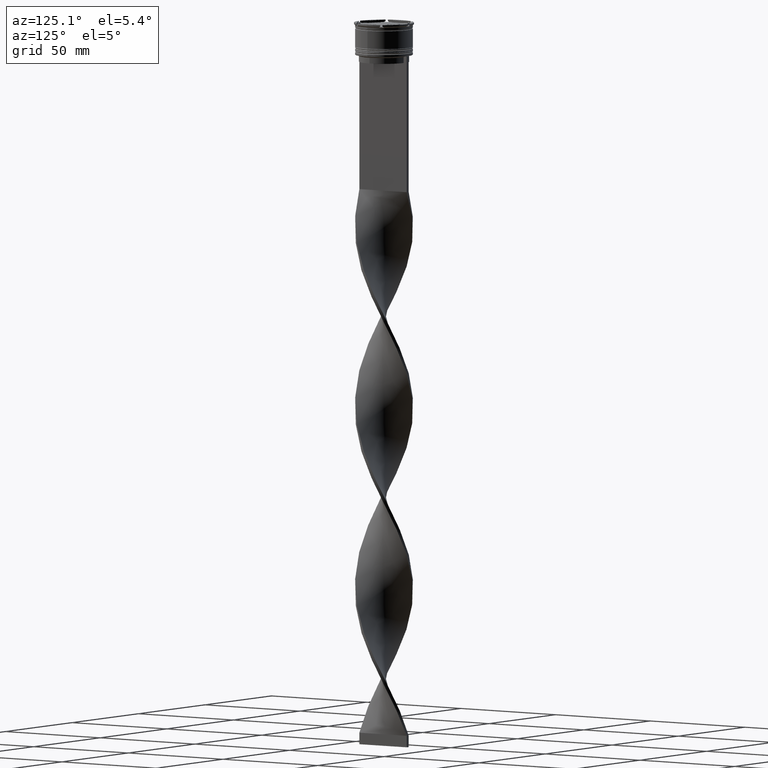
[diagram: clean part render]
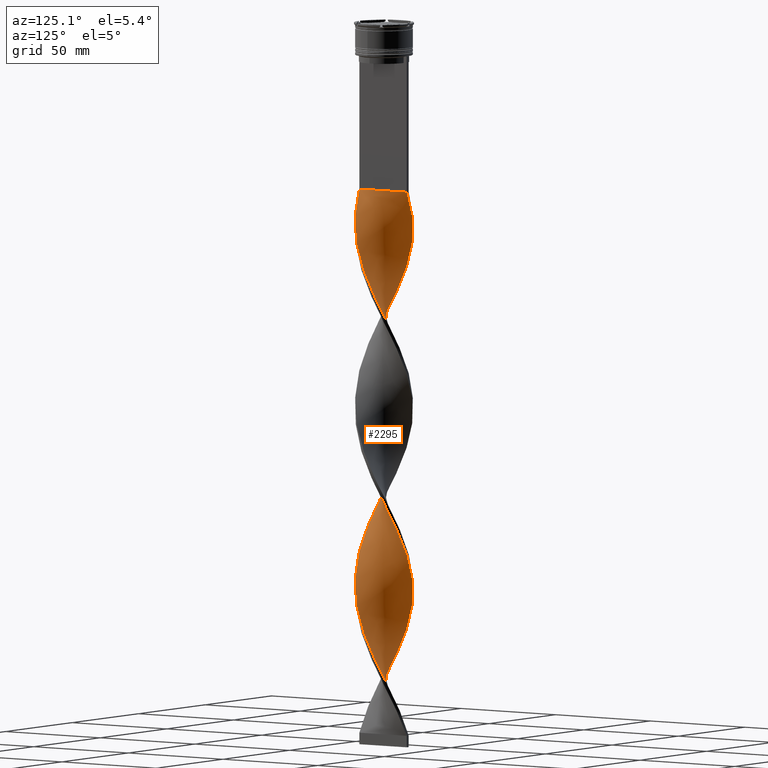
[diagram: same view with one face highlighted and labeled with its STEP entity id]
A machine part, auxiliary view. The second image highlights one B-rep face of the part: STEP entity #2295.
In plain terms, the highlighted face is a freeform B-spline surface patch.
Its self-contained STEP definition (entity closure, byte-faithful):
#7 = CARTESIAN_POINT ( 'NONE',  ( -0.7499999999999996669, 4.166666666666667851, -309.0000000000000000 ) ) ;
#11 = CARTESIAN_POINT ( 'NONE',  ( -1.733771335307729533, 12.44097371988153711, -153.6333333333333826 ) ) ;
#17 = CARTESIAN_POINT ( 'NONE',  ( -12.36783393232032680, -2.195557779805334508, -118.2333333333333485 ) ) ;
#19 = CARTESIAN_POINT ( 'NONE',  ( -4.576004816908207040, 11.65644370790820972, -159.5333333333333314 ) ) ;
#29 = CARTESIAN_POINT ( 'NONE',  ( 2.696197068449239787, -12.22877840865904986, -234.2666666666666515 ) ) ;
#36 = CARTESIAN_POINT ( 'NONE',  ( -12.36783393232032680, 2.195557779805332288, -185.0999999999999659 ) ) ;
#40 = CARTESIAN_POINT ( 'NONE',  ( 0.2337713353077288947, -12.55902628011846645, -153.6333333333333826 ) ) ;
#49 = CARTESIAN_POINT ( 'NONE',  ( 10.55355136890620038, -6.740552907874703514, -253.9333333333333371 ) ) ;
#55 = CARTESIAN_POINT ( 'NONE',  ( -12.01658309743656439, -3.658622801590741158, -196.9000000000000057 ) ) ;
#59 = CARTESIAN_POINT ( 'NONE',  ( 11.47807442715926030, 5.006626353603056856, -202.8000000000000114 ) ) ;
#66 = CARTESIAN_POINT ( 'NONE',  ( 0.7500000000000002220, 12.50000000000000000, -73.00000000000001421 ) ) ;
#75 = CARTESIAN_POINT ( 'NONE',  ( 7.192885447545554811, -10.29787303672002530, -244.0999999999999659 ) ) ;
#95 = CARTESIAN_POINT ( 'NONE',  ( 10.79708867754994017, 6.343136139885610980, -281.4666666666666401 ) ) ;
#98 = CARTESIAN_POINT ( 'NONE',  ( -10.55355136890619860, -6.740552907874702626, -285.3999999999999773 ) ) ;
#100 = CARTESIAN_POINT ( 'NONE',  ( -7.954078399437126912, -9.671873490467486789, -135.9333333333333371 ) ) ;
#111 = CARTESIAN_POINT ( 'NONE',  ( 8.715271351328699012, -9.045873944214958939, -248.0333333333333314 ) ) ;
#115 = CARTESIAN_POINT ( 'NONE',  ( -2.696197068449241119, -12.22877840865904808, -305.0666666666666629 ) ) ;
#118 = CARTESIAN_POINT ( 'NONE',  ( -3.658622801590750484, -12.01658309743656083, -145.7666666666666515 ) ) ;
#128 = CARTESIAN_POINT ( 'NONE',  ( 3.658622801590748264, -12.01658309743656083, -78.90000000000001990 ) ) ;
#131 = CARTESIAN_POINT ( 'NONE',  ( 3.149420042465479241, 12.11996919947063134, -301.1333333333333258 ) ) ;
#136 = CARTESIAN_POINT ( 'NONE',  ( -11.08404438769758293, -5.909970402080498175, -283.4333333333333940 ) ) ;
#140 = CARTESIAN_POINT ( 'NONE',  ( -5.006626353603058632, 11.47807442715926030, -84.80000000000001137 ) ) ;
#143 = EDGE_CURVE ( 'NONE', #3758, #4504, #1058, .T. ) ;
#166 = CARTESIAN_POINT ( 'NONE',  ( -8.715271351328700788, -9.045873944214958939, -133.9666666666666686 ) ) ;
#177 = CARTESIAN_POINT ( 'NONE',  ( 12.36783393232032502, -2.195557779805335841, -106.4333333333333513 ) ) ;
#186 = CARTESIAN_POINT ( 'NONE',  ( -7.192885447545556588, -10.29787303672002174, -295.2333333333332916 ) ) ;
#209 = CARTESIAN_POINT ( 'NONE',  ( 11.47807442715926030, 5.006626353603056856, -202.8000000000000114 ) ) ;
#225 = EDGE_CURVE ( 'NONE', #1636, #4504, #1576, .T. ) ;
#234 = CARTESIAN_POINT ( 'NONE',  ( 7.192885447545553035, 10.29787303672002530, -216.5666666666666629 ) ) ;
#239 = CARTESIAN_POINT ( 'NONE',  ( -9.045873944214958939, 8.715271351328699012, -94.63333333333335418 ) ) ;
#259 = CARTESIAN_POINT ( 'NONE',  ( 2.696197068449242007, 12.22877840865904808, -226.3999999999999773 ) ) ;
#284 = CARTESIAN_POINT ( 'NONE',  ( -8.308504678941934785, 9.369164850721755755, -250.0000000000000000 ) ) ;
#305 = CARTESIAN_POINT ( 'NONE',  ( 9.671873490467490342, 7.954078399437124247, -285.3999999999999773 ) ) ;
#312 = CARTESIAN_POINT ( 'NONE',  ( 5.493386832225668925, -11.29630431837985682, -82.83333333333335702 ) ) ;
#316 = CARTESIAN_POINT ( 'NONE',  ( -0.2337713353077304212, 12.55902628011846645, -74.96666666666668277 ) ) ;
#335 = CARTESIAN_POINT ( 'NONE',  ( 12.22877840865904986, 2.696197068449238898, -116.2666666666666657 ) ) ;
#338 = CARTESIAN_POINT ( 'NONE',  ( -7.192885447545555699, -10.29787303672001997, -137.9000000000000625 ) ) ;
#342 = CARTESIAN_POINT ( 'NONE',  ( -12.01658309743656439, -3.658622801590741158, -196.9000000000000057 ) ) ;
#357 = CARTESIAN_POINT ( 'NONE',  ( 11.29630431837985682, 5.493386832225668037, -122.1666666666666998 ) ) ;
#360 = CARTESIAN_POINT ( 'NONE',  ( 10.29787303672002530, -7.192885447545551258, -177.2333333333333485 ) ) ;
#362 = CARTESIAN_POINT ( 'NONE',  ( 1.214664557556534019, 12.46343010621939307, -147.7333333333333201 ) ) ;
#364 = CARTESIAN_POINT ( 'NONE',  ( -5.006626353603061297, -11.47807442715925852, -218.5333333333333314 ) ) ;
#372 = CARTESIAN_POINT ( 'NONE',  ( 12.44097371988153711, 1.733771335307730199, -271.6333333333332689 ) ) ;
#379 = CARTESIAN_POINT ( 'NONE',  ( -11.08404438769758471, 5.909970402080495511, -177.2333333333333485 ) ) ;
#383 = CARTESIAN_POINT ( 'NONE',  ( -12.55902628011846645, -0.2337713353077295608, -114.3000000000000256 ) ) ;
#385 = CARTESIAN_POINT ( 'NONE',  ( -6.343136139885609204, 10.79708867754994017, -163.4666666666666401 ) ) ;
#395 = CARTESIAN_POINT ( 'NONE',  ( 7.954078399437126023, -9.671873490467488566, -246.0666666666666629 ) ) ;
#403 = CARTESIAN_POINT ( 'NONE',  ( -12.44097371988153711, -1.733771335307734418, -192.9666666666666970 ) ) ;
#407 = CARTESIAN_POINT ( 'NONE',  ( 3.658622801590746043, 12.01658309743656261, -224.4333333333333371 ) ) ;
#421 = CARTESIAN_POINT ( 'NONE',  ( -9.671873490467490342, -7.954078399437122471, -206.7333333333333201 ) ) ;
#425 = CARTESIAN_POINT ( 'NONE',  ( -0.7500000000000017764, -12.50000000000000000, -151.6666666666666856 ) ) ;
#440 = CARTESIAN_POINT ( 'NONE',  ( 8.308504678941934785, 9.369164850721753979, -289.3333333333333144 ) ) ;
#443 = CARTESIAN_POINT ( 'NONE',  ( -12.44097371988153711, 1.733771335307731976, -267.6999999999999318 ) ) ;
#446 = CARTESIAN_POINT ( 'NONE',  ( -11.29630431837985682, 5.493386832225669814, -102.5000000000000000 ) ) ;
#463 = CARTESIAN_POINT ( 'NONE',  ( 7.954078399437126023, -9.671873490467488566, -246.0666666666666629 ) ) ;
#466 = CARTESIAN_POINT ( 'NONE',  ( -5.006626353603058632, 11.47807442715926030, -242.1333333333333258 ) ) ;
#469 = CARTESIAN_POINT ( 'NONE',  ( -12.46343010621939484, -1.214664557556531577, -116.2666666666666657 ) ) ;
#484 = CARTESIAN_POINT ( 'NONE',  ( 9.045873944214958939, 8.715271351328699012, -287.3666666666667311 ) ) ;
#487 = CARTESIAN_POINT ( 'NONE',  ( -9.045873944214958939, 8.715271351328699012, -251.9666666666666686 ) ) ;
#490 = CARTESIAN_POINT ( 'NONE',  ( -3.149420042465477465, 12.11996919947063134, -80.86666666666667425 ) ) ;
#501 = CARTESIAN_POINT ( 'NONE',  ( 7.954078399437126023, -9.671873490467488566, -88.73333333333334849 ) ) ;
#507 = CARTESIAN_POINT ( 'NONE',  ( -10.02305835011481605, -7.571135413668910630, -287.3666666666667311 ) ) ;
#510 = CARTESIAN_POINT ( 'NONE',  ( 6.740552907874702626, -10.55355136890619860, -167.4000000000000057 ) ) ;
#524 = CARTESIAN_POINT ( 'NONE',  ( 12.44097371988153711, 1.733771335307730199, -114.3000000000000256 ) ) ;
#536 = CARTESIAN_POINT ( 'NONE',  ( -11.65644370790820794, 4.576004816908208817, -104.4666666666666828 ) ) ;
#555 = CARTESIAN_POINT ( 'NONE',  ( -9.369164850721755755, -8.308504678941933008, -289.3333333333333144 ) ) ;
#578 = CARTESIAN_POINT ( 'NONE',  ( -0.7500000000000017764, -12.50000000000000000, -309.0000000000000000 ) ) ;
#591 = CARTESIAN_POINT ( 'NONE',  ( 10.29787303672002352, 7.192885447545553923, -126.1000000000000227 ) ) ;
#602 = CARTESIAN_POINT ( 'NONE',  ( 8.715271351328704341, 9.045873944214953610, -212.6333333333333826 ) ) ;
#630 = CARTESIAN_POINT ( 'NONE',  ( 9.369164850721755755, 8.308504678941931232, -210.6666666666666572 ) ) ;
#633 = CARTESIAN_POINT ( 'NONE',  ( 0.7500000000000002220, 12.50000000000000000, -73.00000000000001421 ) ) ;
#637 = ORIENTED_EDGE ( 'NONE', *, *, #225, .F. ) ;
#650 = CARTESIAN_POINT ( 'NONE',  ( 7.571135413668912406, 10.02305835011481605, -291.3000000000000682 ) ) ;
#654 = CARTESIAN_POINT ( 'NONE',  ( -12.01658309743656083, 3.658622801590749596, -263.7666666666667652 ) ) ;
#670 = CARTESIAN_POINT ( 'NONE',  ( -0.7499999999999986677, 12.50000000000000000, -309.0000000000000000 ) ) ;
#677 = CARTESIAN_POINT ( 'NONE',  ( 4.103282305125623530, 11.87210446662093588, -141.8333333333333144 ) ) ;
#682 = CARTESIAN_POINT ( 'NONE',  ( 9.671873490467486789, -7.954078399437126912, -175.2666666666666799 ) ) ;
#698 = CARTESIAN_POINT ( 'NONE',  ( -8.715271351328699012, 9.045873944214960716, -169.3666666666667027 ) ) ;
#701 = CARTESIAN_POINT ( 'NONE',  ( -12.50000000000000000, 0.7500000000000009992, -112.3333333333333428 ) ) ;
#704 = CARTESIAN_POINT ( 'NONE',  ( -10.79708867754994017, -6.343136139885609204, -202.8000000000000114 ) ) ;
#719 = CARTESIAN_POINT ( 'NONE',  ( 6.740552907874705291, 10.55355136890619860, -135.9333333333333371 ) ) ;
#722 = CARTESIAN_POINT ( 'NONE',  ( 6.740552907874702626, -10.55355136890619860, -167.4000000000000057 ) ) ;
#724 = CARTESIAN_POINT ( 'NONE',  ( -7.954078399437124247, 9.671873490467490342, -167.4000000000000057 ) ) ;
#732 = CARTESIAN_POINT ( 'NONE',  ( 0.7500000000000002220, -12.50000000000000000, -230.3333333333333428 ) ) ;
#742 = CARTESIAN_POINT ( 'NONE',  ( 11.65644370790820972, 4.576004816908207928, -120.2000000000000028 ) ) ;
#748 = CARTESIAN_POINT ( 'NONE',  ( 7.192885447545552147, 10.29787303672002352, -216.5666666666666629 ) ) ;
#759 = CARTESIAN_POINT ( 'NONE',  ( 12.46343010621939484, -1.214664557556532909, -265.7333333333333485 ) ) ;
#767 = CARTESIAN_POINT ( 'NONE',  ( -2.696197068449238010, 12.22877840865904986, -155.6000000000000227 ) ) ;
#772 = CARTESIAN_POINT ( 'NONE',  ( 12.22877840865904808, -2.696197068449241119, -187.0666666666666629 ) ) ;
#785 = CARTESIAN_POINT ( 'NONE',  ( -4.103282305125629748, -11.87210446662093410, -220.5000000000000284 ) ) ;
#790 = CARTESIAN_POINT ( 'NONE',  ( -6.740552907874703514, 10.55355136890620038, -88.73333333333334849 ) ) ;
#800 = CARTESIAN_POINT ( 'NONE',  ( 4.103282305125623530, 11.87210446662093588, -299.1666666666666856 ) ) ;
#805 = CARTESIAN_POINT ( 'NONE',  ( -10.79708867754993840, 6.343136139885611868, -100.5333333333333314 ) ) ;
#821 = CARTESIAN_POINT ( 'NONE',  ( -9.045873944214957163, -8.715271351328702565, -208.7000000000000171 ) ) ;
#826 = CARTESIAN_POINT ( 'NONE',  ( -6.343136139885612756, -10.79708867754993840, -139.8666666666666742 ) ) ;
#832 = DIRECTION ( 'NONE',  ( 0.000000000000000000, 1.000000000000000000, 0.000000000000000000 ) ) ;
#843 = CARTESIAN_POINT ( 'NONE',  ( -2.195557779805333176, -12.36783393232032680, -224.4333333333333655 ) ) ;
#849 = CARTESIAN_POINT ( 'NONE',  ( -4.576004816908209705, -11.65644370790820794, -143.7999999999999829 ) ) ;
#870 = CARTESIAN_POINT ( 'NONE',  ( -12.01658309743656083, 3.658622801590749596, -106.4333333333333513 ) ) ;
#895 = CARTESIAN_POINT ( 'NONE',  ( 12.11996919947063311, 3.149420042465475245, -198.8666666666666742 ) ) ;
#916 = CARTESIAN_POINT ( 'NONE',  ( -4.103282305125622642, 11.87210446662093588, -240.1666666666667140 ) ) ;
#931 = CARTESIAN_POINT ( 'NONE',  ( 11.87210446662093588, -4.103282305125623530, -102.5000000000000142 ) ) ;
#939 = CARTESIAN_POINT ( 'NONE',  ( -5.909970402080497287, 11.08404438769758293, -244.0999999999999659 ) ) ;
#962 = CARTESIAN_POINT ( 'NONE',  ( 1.214664557556534019, 12.46343010621939307, -305.0666666666666629 ) ) ;
#967 = CARTESIAN_POINT ( 'NONE',  ( -12.55902628011846645, -0.2337713353077295608, -271.6333333333332689 ) ) ;
#991 = CARTESIAN_POINT ( 'NONE',  ( -11.65644370790820794, 4.576004816908208817, -261.7999999999999545 ) ) ;
#993 = CARTESIAN_POINT ( 'NONE',  ( -5.909970402080498175, 11.08404438769758293, -86.76666666666666572 ) ) ;
#1006 = CARTESIAN_POINT ( 'NONE',  ( 0.2337713353077321421, 12.55902628011846645, -307.0333333333333030 ) ) ;
#1011 = CARTESIAN_POINT ( 'NONE',  ( 7.571135413668911518, 10.02305835011481605, -133.9666666666666686 ) ) ;
#1015 = CARTESIAN_POINT ( 'NONE',  ( 12.11996919947063311, 3.149420042465475245, -198.8666666666666742 ) ) ;
#1031 = CARTESIAN_POINT ( 'NONE',  ( 5.909970402080499063, 11.08404438769758293, -137.9000000000000625 ) ) ;
#1035 = CARTESIAN_POINT ( 'NONE',  ( 8.715271351328704341, 9.045873944214953610, -212.6333333333333826 ) ) ;
#1037 = CARTESIAN_POINT ( 'NONE',  ( -11.87210446662093410, 4.103282305125629748, -181.1666666666666856 ) ) ;
#1041 = CARTESIAN_POINT ( 'NONE',  ( -3.149420042465480574, -12.11996919947063134, -222.4666666666666686 ) ) ;
#1055 = CARTESIAN_POINT ( 'NONE',  ( 5.006626353603060409, 11.47807442715925852, -139.8666666666666742 ) ) ;
#1058 =( BOUNDED_CURVE ( )  B_SPLINE_CURVE ( 2, ( #1247, #2621, #4324, #128, #1991, #4002, #2647, #2316, #501, #3346, #1200, #3688, #2600, #3323, #4049, #931, #1895, #177, #2269, #2292, #2579, #524, #2336, #1528, #3711, #3301, #1580, #591, #3961, #3666, #2910, #3825, #3119, #1415, #4185, #2105, #3485, #4499, #362, #1759, #1062, #1390, #3845, #3140, #19, #2801, #385, #2466, #724, #2127, #2780, #3506, #1786, #1738, #4162, #1037, #2447, #3804, #3142, #3468, #2468, #2087, #1419, #342, #3488, #3123, #704, #2804, #2107, #1741, #4164, #4502, #3827, #1393, #364, #1761, #1041, #4187, #1064, #2424, #732, #3151, #29, #3854, #2135, #1425, #1447, #4213, #395, #1793, #3172, #1767, #49, #1089, #4194, #2829, #2497, #3877, #759, #1070, #2477, #372, #2458, #3788, #2046, #3838, #2074, #4468, #305, #1404, #1380, #650, #2794, #2438, #2770, #2119, #1772, #1358, #962, #1006, #670 ),
 .UNSPECIFIED., .F., .T. ) 
 B_SPLINE_CURVE_WITH_KNOTS ( ( 3, 2, 2, 2, 2, 2, 2, 2, 2, 2, 2, 2, 2, 2, 2, 2, 2, 2, 2, 2, 2, 2, 2, 2, 2, 2, 2, 2, 2, 2, 2, 2, 2, 2, 2, 2, 2, 2, 2, 2, 2, 2, 2, 2, 2, 2, 2, 2, 2, 2, 2, 2, 2, 2, 2, 2, 2, 2, 2, 2, 3 ),
 ( 0.000000000000000000, 0.01250000000000000243, 0.02500000000000000486, 0.03749999999999999861, 0.05000000000000000971, 0.06250000000000000000, 0.07499999999999999722, 0.08749999999999998057, 0.1000000000000000194, 0.1125000000000000028, 0.1250000000000000000, 0.1375000000000000111, 0.1499999999999999944, 0.1625000000000000056, 0.1749999999999999611, 0.1875000000000000000, 0.2000000000000000389, 0.2124999999999999944, 0.2250000000000000056, 0.2374999999999999611, 0.2500000000000000000, 0.2625000000000000111, 0.2750000000000000222, 0.2874999999999999778, 0.2999999999999999889, 0.3125000000000000000, 0.3250000000000000111, 0.3375000000000000777, 0.3499999999999999223, 0.3624999999999999889, 0.3750000000000000000, 0.3875000000000000111, 0.4000000000000000777, 0.4124999999999999223, 0.4249999999999999889, 0.4375000000000000000, 0.4500000000000000111, 0.4625000000000000777, 0.4749999999999999223, 0.4874999999999999889, 0.5000000000000000000, 0.5124999999999999556, 0.5250000000000000222, 0.5374999999999999778, 0.5500000000000000444, 0.5625000000000000000, 0.5749999999999999556, 0.5875000000000000222, 0.5999999999999999778, 0.6125000000000000444, 0.6250000000000000000, 0.6374999999999999556, 0.6500000000000000222, 0.6624999999999999778, 0.6750000000000001554, 0.6875000000000000000, 0.6999999999999998446, 0.7125000000000000222, 0.7249999999999999778, 0.7375000000000001554, 0.7500000000000000000 ),
 .UNSPECIFIED. ) 
 CURVE ( )  GEOMETRIC_REPRESENTATION_ITEM ( )  RATIONAL_B_SPLINE_CURVE ( ( 1.000000000000000000, 0.9969173337331279638, 1.000000000000000000, 0.9969173337331279638, 1.000000000000000000, 0.9969173337331279638, 1.000000000000000000, 0.9969173337331279638, 1.000000000000000000, 0.9969173337331279638, 1.000000000000000000, 0.9969173337331279638, 1.000000000000000000, 0.9969173337331279638, 1.000000000000000000, 0.9969173337331279638, 1.000000000000000000, 0.9969173337331279638, 1.000000000000000000, 0.9969173337331279638, 1.000000000000000000, 0.9969173337331279638, 1.000000000000000000, 0.9969173337331279638, 1.000000000000000000, 0.9969173337331279638, 1.000000000000000000, 0.9969173337331279638, 1.000000000000000000, 0.9969173337331279638, 1.000000000000000000, 0.9969173337331279638, 1.000000000000000000, 0.9969173337331279638, 1.000000000000000000, 0.9969173337331279638, 1.000000000000000000, 0.9969173337331279638, 1.000000000000000000, 0.9969173337331279638, 1.000000000000000000, 0.9969173337331279638, 1.000000000000000000, 0.9969173337331279638, 1.000000000000000000, 0.9969173337331279638, 1.000000000000000000, 0.9969173337331279638, 1.000000000000000000, 0.9969173337331279638, 1.000000000000000000, 0.9969173337331279638, 1.000000000000000000, 0.9969173337331279638, 1.000000000000000000, 0.9969173337331279638, 1.000000000000000000, 0.9969173337331279638, 1.000000000000000000, 0.9969173337331279638, 1.000000000000000000, 0.9969173337331279638, 1.000000000000000000, 0.9969173337331279638, 1.000000000000000000, 0.9969173337331279638, 1.000000000000000000, 0.9969173337331279638, 1.000000000000000000, 0.9969173337331279638, 1.000000000000000000, 0.9969173337331279638, 1.000000000000000000, 0.9969173337331279638, 1.000000000000000000, 0.9969173337331279638, 1.000000000000000000, 0.9969173337331279638, 1.000000000000000000, 0.9969173337331279638, 1.000000000000000000, 0.9969173337331279638, 1.000000000000000000, 0.9969173337331279638, 1.000000000000000000, 0.9969173337331279638, 1.000000000000000000, 0.9969173337331279638, 1.000000000000000000, 0.9969173337331279638, 1.000000000000000000, 0.9969173337331279638, 1.000000000000000000, 0.9969173337331279638, 1.000000000000000000, 0.9969173337331279638, 1.000000000000000000, 0.9969173337331279638, 1.000000000000000000, 0.9969173337331279638, 1.000000000000000000, 0.9969173337331279638, 1.000000000000000000, 0.9969173337331279638, 1.000000000000000000, 0.9969173337331279638, 1.000000000000000000, 0.9969173337331279638, 1.000000000000000000, 0.9969173337331279638, 1.000000000000000000, 0.9969173337331279638, 1.000000000000000000, 0.9969173337331279638, 1.000000000000000000, 0.9969173337331279638, 1.000000000000000000, 0.9969173337331279638, 1.000000000000000000, 0.9969173337331279638, 1.000000000000000000 ) ) 
 REPRESENTATION_ITEM ( '' )  );
#1060 = CARTESIAN_POINT ( 'NONE',  ( -11.08404438769758293, -5.909970402080498175, -126.1000000000000227 ) ) ;
#1062 = CARTESIAN_POINT ( 'NONE',  ( -0.7499999999999986677, 12.50000000000000000, -151.6666666666666856 ) ) ;
#1064 = CARTESIAN_POINT ( 'NONE',  ( -1.214664557556535351, -12.46343010621939307, -226.3999999999999773 ) ) ;
#1070 = CARTESIAN_POINT ( 'NONE',  ( 12.55902628011846645, -0.2337713353077312817, -267.6999999999999318 ) ) ;
#1077 = CARTESIAN_POINT ( 'NONE',  ( -12.46343010621939307, 1.214664557556534463, -187.0666666666666629 ) ) ;
#1081 = CARTESIAN_POINT ( 'NONE',  ( -6.343136139885612756, -10.79708867754993840, -139.8666666666666742 ) ) ;
#1089 = CARTESIAN_POINT ( 'NONE',  ( 11.08404438769758293, -5.909970402080499952, -255.9000000000000625 ) ) ;
#1100 = CARTESIAN_POINT ( 'NONE',  ( 12.36783393232032502, -2.195557779805335397, -106.4333333333333513 ) ) ;
#1105 = CARTESIAN_POINT ( 'NONE',  ( -2.696197068449241119, -12.22877840865904808, -147.7333333333333201 ) ) ;
#1119 = CARTESIAN_POINT ( 'NONE',  ( 12.55902628011846645, -0.2337713353077312817, -267.6999999999999318 ) ) ;
#1125 = CARTESIAN_POINT ( 'NONE',  ( -12.36783393232032680, -2.195557779805334508, -118.2333333333333343 ) ) ;
#1136 = CARTESIAN_POINT ( 'NONE',  ( 1.733771335307731087, -12.44097371988153711, -232.3000000000000114 ) ) ;
#1144 = CARTESIAN_POINT ( 'NONE',  ( 9.671873490467486789, -7.954078399437126912, -175.2666666666666799 ) ) ;
#1155 = CARTESIAN_POINT ( 'NONE',  ( 11.47807442715925852, -5.006626353603059520, -257.8666666666666742 ) ) ;
#1158 = CARTESIAN_POINT ( 'NONE',  ( -7.954078399437126912, -9.671873490467486789, -293.2666666666666515 ) ) ;
#1161 = CARTESIAN_POINT ( 'NONE',  ( -2.195557779805334508, 12.36783393232032502, -78.90000000000003411 ) ) ;
#1180 = CARTESIAN_POINT ( 'NONE',  ( 2.696197068449239787, -12.22877840865904986, -234.2666666666666515 ) ) ;
#1187 = CARTESIAN_POINT ( 'NONE',  ( -8.308504678941934785, 9.369164850721755755, -92.66666666666667140 ) ) ;
#1200 = CARTESIAN_POINT ( 'NONE',  ( 9.369164850721755755, -8.308504678941934785, -92.66666666666667140 ) ) ;
#1204 = CARTESIAN_POINT ( 'NONE',  ( 12.11996919947063134, -3.149420042465478353, -261.7999999999999545 ) ) ;
#1208 = CARTESIAN_POINT ( 'NONE',  ( -5.909970402080498175, 11.08404438769758293, -244.0999999999999943 ) ) ;
#1211 = CARTESIAN_POINT ( 'NONE',  ( -11.47807442715926030, -5.006626353603058632, -124.1333333333333400 ) ) ;
#1234 = CARTESIAN_POINT ( 'NONE',  ( 4.576004816908211481, 11.65644370790820794, -222.4666666666666686 ) ) ;
#1247 = CARTESIAN_POINT ( 'NONE',  ( 0.7500000000000002220, -12.50000000000000000, -73.00000000000001421 ) ) ;
#1260 = CARTESIAN_POINT ( 'NONE',  ( 10.55355136890619860, 6.740552907874700850, -206.7333333333333201 ) ) ;
#1263 = CARTESIAN_POINT ( 'NONE',  ( -3.149420042465477465, 12.11996919947063134, -80.86666666666667425 ) ) ;
#1283 = CARTESIAN_POINT ( 'NONE',  ( -7.954078399437126912, -9.671873490467486789, -293.2666666666666515 ) ) ;
#1307 = CARTESIAN_POINT ( 'NONE',  ( -10.79708867754993840, 6.343136139885611868, -257.8666666666666742 ) ) ;
#1333 = CARTESIAN_POINT ( 'NONE',  ( -0.7499999999999986677, 12.50000000000000000, -309.0000000000000000 ) ) ;
#1336 = CARTESIAN_POINT ( 'NONE',  ( -0.7499999999999986677, 12.50000000000000000, -309.0000000000000000 ) ) ;
#1338 = CARTESIAN_POINT ( 'NONE',  ( -2.195557779805334508, 12.36783393232032502, -236.2333333333333769 ) ) ;
#1358 = CARTESIAN_POINT ( 'NONE',  ( 2.195557779805335841, 12.36783393232032502, -303.0999999999999659 ) ) ;
#1363 = CARTESIAN_POINT ( 'NONE',  ( 12.55902628011846645, -0.2337713353077312817, -110.3666666666666600 ) ) ;
#1366 = CARTESIAN_POINT ( 'NONE',  ( 11.65644370790820794, -4.576004816908210593, -183.1333333333333258 ) ) ;
#1380 = CARTESIAN_POINT ( 'NONE',  ( 8.308504678941934785, 9.369164850721753979, -289.3333333333333144 ) ) ;
#1385 = CARTESIAN_POINT ( 'NONE',  ( 6.343136139885610980, -10.79708867754994017, -84.80000000000001137 ) ) ;
#1388 = CARTESIAN_POINT ( 'NONE',  ( 12.55902628011846645, 0.2337713353077338907, -192.9666666666666970 ) ) ;
#1390 = CARTESIAN_POINT ( 'NONE',  ( -1.733771335307729533, 12.44097371988153711, -153.6333333333333826 ) ) ;
#1393 = CARTESIAN_POINT ( 'NONE',  ( -5.909970402080496399, -11.08404438769758293, -216.5666666666666629 ) ) ;
#1404 = CARTESIAN_POINT ( 'NONE',  ( 9.045873944214958939, 8.715271351328699012, -287.3666666666667311 ) ) ;
#1410 = CARTESIAN_POINT ( 'NONE',  ( 12.44097371988153711, 1.733771335307730199, -114.3000000000000398 ) ) ;
#1413 = CARTESIAN_POINT ( 'NONE',  ( 4.103282305125619978, -11.87210446662093766, -161.5000000000000000 ) ) ;
#1415 = CARTESIAN_POINT ( 'NONE',  ( 5.909970402080499952, 11.08404438769758293, -137.9000000000000625 ) ) ;
#1419 = CARTESIAN_POINT ( 'NONE',  ( -12.22877840865904986, -2.696197068449237122, -194.9333333333333371 ) ) ;
#1425 = CARTESIAN_POINT ( 'NONE',  ( 5.493386832225668925, -11.29630431837985682, -240.1666666666666856 ) ) ;
#1432 = CARTESIAN_POINT ( 'NONE',  ( -7.954078399437124247, 9.671873490467490342, -167.4000000000000057 ) ) ;
#1437 = CARTESIAN_POINT ( 'NONE',  ( -11.87210446662093588, -4.103282305125621754, -122.1666666666666856 ) ) ;
#1447 = CARTESIAN_POINT ( 'NONE',  ( 6.343136139885610980, -10.79708867754994017, -242.1333333333333258 ) ) ;
#1455 = CARTESIAN_POINT ( 'NONE',  ( 1.733771335307731087, -12.44097371988153711, -74.96666666666668277 ) ) ;
#1457 = CARTESIAN_POINT ( 'NONE',  ( 5.493386832225676919, 11.29630431837985505, -220.5000000000000284 ) ) ;
#1473 = CARTESIAN_POINT ( 'NONE',  ( 10.02305835011481605, -7.571135413668909742, -251.9666666666666970 ) ) ;
#1478 = CARTESIAN_POINT ( 'NONE',  ( -3.658622801590750040, -12.01658309743656083, -303.0999999999999659 ) ) ;
#1495 = CARTESIAN_POINT ( 'NONE',  ( 5.909970402080499063, 11.08404438769758293, -295.2333333333332916 ) ) ;
#1499 = CARTESIAN_POINT ( 'NONE',  ( -9.369164850721755755, -8.308504678941933008, -289.3333333333333144 ) ) ;
#1501 = CARTESIAN_POINT ( 'NONE',  ( -9.369164850721755755, -8.308504678941933008, -132.0000000000000000 ) ) ;
#1512 = CARTESIAN_POINT ( 'NONE',  ( 11.08404438769758293, -5.909970402080499063, -255.9000000000000909 ) ) ;
#1517 = CARTESIAN_POINT ( 'NONE',  ( -12.36783393232032680, -2.195557779805334508, -275.5666666666666060 ) ) ;
#1519 = CARTESIAN_POINT ( 'NONE',  ( -2.696197068449241119, -12.22877840865904808, -147.7333333333333201 ) ) ;
#1528 = CARTESIAN_POINT ( 'NONE',  ( 12.01658309743656261, 3.658622801590747819, -118.2333333333333485 ) ) ;
#1533 = CARTESIAN_POINT ( 'NONE',  ( -0.7499999999999986677, 12.50000000000000000, -309.0000000000000000 ) ) ;
#1538 = CARTESIAN_POINT ( 'NONE',  ( -10.29787303672001997, 7.192885447545555699, -255.9000000000000625 ) ) ;
#1542 = CARTESIAN_POINT ( 'NONE',  ( -12.55902628011846645, -0.2337713353077295608, -114.3000000000000398 ) ) ;
#1561 = CARTESIAN_POINT ( 'NONE',  ( -7.571135413668917735, -10.02305835011481072, -212.6333333333333826 ) ) ;
#1564 = CARTESIAN_POINT ( 'NONE',  ( -11.47807442715926030, -5.006626353603058632, -281.4666666666666401 ) ) ;
#1567 = CARTESIAN_POINT ( 'NONE',  ( 10.29787303672002707, -7.192885447545552147, -177.2333333333333485 ) ) ;
#1576 = B_SPLINE_CURVE_WITH_KNOTS ( 'NONE', 3,
 ( #3478, #2023, #7, #1333 ),
 .UNSPECIFIED., .F., .F.,
 ( 4, 4 ),
 ( 0.000000000000000000, 1.000000000000000000 ),
 .UNSPECIFIED. ) ;
#1580 = CARTESIAN_POINT ( 'NONE',  ( 10.79708867754994017, 6.343136139885610980, -124.1333333333333400 ) ) ;
#1587 = CARTESIAN_POINT ( 'NONE',  ( -0.2337713353077304212, 12.55902628011846645, -232.3000000000000114 ) ) ;
#1607 = CARTESIAN_POINT ( 'NONE',  ( 6.343136139885613645, 10.79708867754993840, -218.5333333333333314 ) ) ;
#1634 = CARTESIAN_POINT ( 'NONE',  ( 1.733771335307739747, 12.44097371988153533, -228.3666666666666458 ) ) ;
#1636 = VERTEX_POINT ( 'NONE', #4500 ) ;
#1658 = CARTESIAN_POINT ( 'NONE',  ( -9.045873944214958939, 8.715271351328699012, -251.9666666666666970 ) ) ;
#1684 = CARTESIAN_POINT ( 'NONE',  ( -10.29787303672002174, 7.192885447545556588, -255.9000000000000909 ) ) ;
#1711 = CARTESIAN_POINT ( 'NONE',  ( 9.369164850721755755, -8.308504678941934785, -92.66666666666667140 ) ) ;
#1714 = CARTESIAN_POINT ( 'NONE',  ( -10.29787303672001997, 7.192885447545555699, -98.56666666666669130 ) ) ;
#1734 = CARTESIAN_POINT ( 'NONE',  ( -4.576004816908207040, 11.65644370790820972, -159.5333333333333314 ) ) ;
#1736 = CARTESIAN_POINT ( 'NONE',  ( 5.909970402080496399, -11.08404438769758293, -165.4333333333333371 ) ) ;
#1738 = CARTESIAN_POINT ( 'NONE',  ( -11.08404438769758471, 5.909970402080495511, -177.2333333333333485 ) ) ;
#1741 = CARTESIAN_POINT ( 'NONE',  ( -9.045873944214957163, -8.715271351328702565, -208.7000000000000171 ) ) ;
#1755 = CARTESIAN_POINT ( 'NONE',  ( 12.50000000000000000, 0.7499999999999994449, -112.3333333333333428 ) ) ;
#1758 = CARTESIAN_POINT ( 'NONE',  ( 12.50000000000000000, -0.7500000000000025535, -191.0000000000000000 ) ) ;
#1759 = CARTESIAN_POINT ( 'NONE',  ( 0.2337713353077321421, 12.55902628011846645, -149.7000000000000171 ) ) ;
#1761 = CARTESIAN_POINT ( 'NONE',  ( -4.103282305125630636, -11.87210446662093410, -220.5000000000000284 ) ) ;
#1767 = CARTESIAN_POINT ( 'NONE',  ( 10.02305835011481605, -7.571135413668910630, -251.9666666666666686 ) ) ;
#1772 = CARTESIAN_POINT ( 'NONE',  ( 3.149420042465479241, 12.11996919947063134, -301.1333333333333258 ) ) ;
#1778 = CARTESIAN_POINT ( 'NONE',  ( -11.87210446662093410, 4.103282305125628859, -181.1666666666667140 ) ) ;
#1784 = CARTESIAN_POINT ( 'NONE',  ( -10.02305835011481605, -7.571135413668910630, -130.0333333333333314 ) ) ;
#1786 = CARTESIAN_POINT ( 'NONE',  ( -10.55355136890619860, 6.740552907874705291, -175.2666666666666799 ) ) ;
#1793 = CARTESIAN_POINT ( 'NONE',  ( 8.715271351328699012, -9.045873944214958939, -248.0333333333333599 ) ) ;
#1801 = CARTESIAN_POINT ( 'NONE',  ( -12.22877840865904986, -2.696197068449237122, -194.9333333333333371 ) ) ;
#1805 = CARTESIAN_POINT ( 'NONE',  ( -7.954078399437126912, -9.671873490467486789, -135.9333333333333371 ) ) ;
#1820 = CARTESIAN_POINT ( 'NONE',  ( 12.46343010621939484, -1.214664557556532909, -265.7333333333333485 ) ) ;
#1839 = CARTESIAN_POINT ( 'NONE',  ( 7.571135413668911518, 10.02305835011481605, -291.3000000000000682 ) ) ;
#1844 = CARTESIAN_POINT ( 'NONE',  ( -6.740552907874703514, 10.55355136890620038, -246.0666666666666629 ) ) ;
#1846 = CARTESIAN_POINT ( 'NONE',  ( 2.195557779805334064, -12.36783393232032680, -157.5666666666666629 ) ) ;
#1859 = CARTESIAN_POINT ( 'NONE',  ( -0.2337713353077390810, -12.55902628011846822, -228.3666666666666458 ) ) ;
#1863 = CARTESIAN_POINT ( 'NONE',  ( -5.493386832225669814, -11.29630431837985682, -299.1666666666666856 ) ) ;
#1865 = CARTESIAN_POINT ( 'NONE',  ( -10.29787303672002174, 7.192885447545556588, -98.56666666666669130 ) ) ;
#1877 = CARTESIAN_POINT ( 'NONE',  ( 1.214664557556534019, 12.46343010621939307, -305.0666666666666629 ) ) ;
#1881 = CARTESIAN_POINT ( 'NONE',  ( -0.2337713353077304212, 12.55902628011846645, -232.3000000000000398 ) ) ;
#1891 = LINE ( 'NONE', #4397, #2508 ) ;
#1895 = CARTESIAN_POINT ( 'NONE',  ( 12.11996919947063134, -3.149420042465478353, -104.4666666666666828 ) ) ;
#1903 = CARTESIAN_POINT ( 'NONE',  ( -4.103282305125622642, 11.87210446662093588, -240.1666666666666856 ) ) ;
#1907 = CARTESIAN_POINT ( 'NONE',  ( 9.045873944214955387, -8.715271351328706118, -173.3000000000000114 ) ) ;
#1932 = CARTESIAN_POINT ( 'NONE',  ( 11.29630431837985505, -5.493386832225676031, -181.1666666666667140 ) ) ;
#1953 = CARTESIAN_POINT ( 'NONE',  ( -4.576004816908209705, -11.65644370790820794, -301.1333333333333258 ) ) ;
#1956 = ORIENTED_EDGE ( 'NONE', *, *, #2725, .F. ) ;
#1974 = CARTESIAN_POINT ( 'NONE',  ( -10.02305835011481605, -7.571135413668909742, -287.3666666666667311 ) ) ;
#1980 = CARTESIAN_POINT ( 'NONE',  ( -5.006626353603058632, 11.47807442715926030, -84.80000000000001137 ) ) ;
#1991 = CARTESIAN_POINT ( 'NONE',  ( 4.576004816908207928, -11.65644370790820794, -80.86666666666667425 ) ) ;
#2003 = CARTESIAN_POINT ( 'NONE',  ( 10.02305835011481427, 7.571135413668914182, -208.7000000000000171 ) ) ;
#2023 = CARTESIAN_POINT ( 'NONE',  ( -0.7500000000000007772, -4.166666666666667851, -309.0000000000000000 ) ) ;
#2028 = CARTESIAN_POINT ( 'NONE',  ( 11.87210446662093410, 4.103282305125625307, -200.8333333333333428 ) ) ;
#2031 = CARTESIAN_POINT ( 'NONE',  ( -1.214664557556532465, 12.46343010621939484, -76.93333333333333712 ) ) ;
#2046 = CARTESIAN_POINT ( 'NONE',  ( 11.65644370790820972, 4.576004816908207928, -277.5333333333333030 ) ) ;
#2051 = CARTESIAN_POINT ( 'NONE',  ( -11.47807442715926030, -5.006626353603058632, -281.4666666666666401 ) ) ;
#2074 = CARTESIAN_POINT ( 'NONE',  ( 10.79708867754994017, 6.343136139885610980, -281.4666666666666401 ) ) ;
#2079 = CARTESIAN_POINT ( 'NONE',  ( 0.2337713353077321421, 12.55902628011846645, -149.7000000000000455 ) ) ;
#2083 = CARTESIAN_POINT ( 'NONE',  ( -3.658622801590750040, -12.01658309743656083, -145.7666666666666515 ) ) ;
#2087 = CARTESIAN_POINT ( 'NONE',  ( -12.44097371988153711, -1.733771335307734640, -192.9666666666666970 ) ) ;
#2101 = CARTESIAN_POINT ( 'NONE',  ( 8.715271351328699012, -9.045873944214958939, -90.70000000000001705 ) ) ;
#2103 = CARTESIAN_POINT ( 'NONE',  ( -5.493386832225669814, -11.29630431837985682, -141.8333333333333428 ) ) ;
#2105 = CARTESIAN_POINT ( 'NONE',  ( 4.103282305125623530, 11.87210446662093588, -141.8333333333333428 ) ) ;
#2107 = CARTESIAN_POINT ( 'NONE',  ( -9.671873490467490342, -7.954078399437122471, -206.7333333333333201 ) ) ;
#2119 = CARTESIAN_POINT ( 'NONE',  ( 4.103282305125623530, 11.87210446662093588, -299.1666666666666856 ) ) ;
#2121 = CARTESIAN_POINT ( 'NONE',  ( 0.7500000000000002220, -12.50000000000000000, -73.00000000000001421 ) ) ;
#2123 = CARTESIAN_POINT ( 'NONE',  ( -10.02305835011481250, 7.571135413668917735, -173.3000000000000114 ) ) ;
#2125 = CARTESIAN_POINT ( 'NONE',  ( 12.01658309743656261, -3.658622801590745155, -185.0999999999999943 ) ) ;
#2127 = CARTESIAN_POINT ( 'NONE',  ( -8.715271351328699012, 9.045873944214960716, -169.3666666666667027 ) ) ;
#2135 = CARTESIAN_POINT ( 'NONE',  ( 4.576004816908207928, -11.65644370790820794, -238.1999999999999886 ) ) ;
#2147 = CARTESIAN_POINT ( 'NONE',  ( -12.55902628011846822, 0.2337713353077382206, -189.0333333333333314 ) ) ;
#2152 = CARTESIAN_POINT ( 'NONE',  ( 12.36783393232032857, 2.195557779805326959, -196.9000000000000057 ) ) ;
#2167 = CARTESIAN_POINT ( 'NONE',  ( 6.343136139885610980, -10.79708867754994017, -242.1333333333333258 ) ) ;
#2171 = CARTESIAN_POINT ( 'NONE',  ( 1.733771335307739747, 12.44097371988153533, -228.3666666666666742 ) ) ;
#2186 = CARTESIAN_POINT ( 'NONE',  ( -1.214664557556535351, -12.46343010621939307, -226.3999999999999773 ) ) ;
#2190 = CARTESIAN_POINT ( 'NONE',  ( -3.149420042465477465, 12.11996919947063134, -238.1999999999999886 ) ) ;
#2192 = CARTESIAN_POINT ( 'NONE',  ( -7.571135413668909742, 10.02305835011481605, -90.70000000000001705 ) ) ;
#2207 = CARTESIAN_POINT ( 'NONE',  ( 2.195557779805335397, 12.36783393232032502, -303.0999999999999659 ) ) ;
#2213 = CARTESIAN_POINT ( 'NONE',  ( -10.79708867754993840, 6.343136139885611868, -257.8666666666666742 ) ) ;
#2215 = CARTESIAN_POINT ( 'NONE',  ( -5.493386832225669814, -11.29630431837985682, -141.8333333333333144 ) ) ;
#2231 = CARTESIAN_POINT ( 'NONE',  ( 12.50000000000000000, 0.7499999999999994449, -269.6666666666666856 ) ) ;
#2234 = CARTESIAN_POINT ( 'NONE',  ( -8.715271351328700788, -9.045873944214958939, -291.3000000000000682 ) ) ;
#2236 = CARTESIAN_POINT ( 'NONE',  ( 0.7500000000000002220, 12.50000000000000000, -73.00000000000001421 ) ) ;
#2256 = CARTESIAN_POINT ( 'NONE',  ( -0.7500000000000017764, -12.50000000000000000, -309.0000000000000000 ) ) ;
#2259 = CARTESIAN_POINT ( 'NONE',  ( 0.2337713353077288947, -12.55902628011846645, -153.6333333333333826 ) ) ;
#2269 = CARTESIAN_POINT ( 'NONE',  ( 12.46343010621939484, -1.214664557556532909, -108.3999999999999915 ) ) ;
#2280 = CARTESIAN_POINT ( 'NONE',  ( -12.44097371988153711, 1.733771335307731976, -110.3666666666666600 ) ) ;
#2292 = CARTESIAN_POINT ( 'NONE',  ( 12.55902628011846645, -0.2337713353077312817, -110.3666666666666742 ) ) ;
#2295 = ADVANCED_FACE ( 'NONE', ( #3993 ), #3648, .T. ) ;
#2302 = CARTESIAN_POINT ( 'NONE',  ( 0.7500000000000002220, 12.50000000000000000, -230.3333333333333428 ) ) ;
#2306 = CARTESIAN_POINT ( 'NONE',  ( -11.29630431837985682, 5.493386832225669814, -102.5000000000000142 ) ) ;
#2316 = CARTESIAN_POINT ( 'NONE',  ( 7.192885447545553923, -10.29787303672002352, -86.76666666666666572 ) ) ;
#2324 = CARTESIAN_POINT ( 'NONE',  ( -5.493386832225669814, -11.29630431837985682, -299.1666666666666856 ) ) ;
#2336 = CARTESIAN_POINT ( 'NONE',  ( 12.22877840865904986, 2.696197068449238898, -116.2666666666666657 ) ) ;
#2344 = CARTESIAN_POINT ( 'NONE',  ( -1.214664557556532465, 12.46343010621939484, -234.2666666666666515 ) ) ;
#2373 = CARTESIAN_POINT ( 'NONE',  ( 12.36783393232032857, 2.195557779805327403, -196.9000000000000057 ) ) ;
#2397 = CARTESIAN_POINT ( 'NONE',  ( -12.46343010621939484, -1.214664557556531577, -273.5999999999999659 ) ) ;
#2416 = CARTESIAN_POINT ( 'NONE',  ( 2.696197068449239787, -12.22877840865904986, -76.93333333333333712 ) ) ;
#2419 = CARTESIAN_POINT ( 'NONE',  ( -12.01658309743656083, 3.658622801590749152, -106.4333333333333513 ) ) ;
#2424 = CARTESIAN_POINT ( 'NONE',  ( -0.2337713353077390810, -12.55902628011846822, -228.3666666666666742 ) ) ;
#2438 = CARTESIAN_POINT ( 'NONE',  ( 5.909970402080499952, 11.08404438769758293, -295.2333333333333485 ) ) ;
#2441 = CARTESIAN_POINT ( 'NONE',  ( -7.192885447545553035, 10.29787303672002530, -165.4333333333333655 ) ) ;
#2445 = CARTESIAN_POINT ( 'NONE',  ( 9.369164850721755755, 8.308504678941931232, -210.6666666666666572 ) ) ;
#2447 = CARTESIAN_POINT ( 'NONE',  ( -12.11996919947063134, 3.149420042465479241, -183.1333333333333258 ) ) ;
#2458 = CARTESIAN_POINT ( 'NONE',  ( 12.22877840865904986, 2.696197068449238898, -273.5999999999999659 ) ) ;
#2461 = CARTESIAN_POINT ( 'NONE',  ( 10.79708867754994017, 6.343136139885610980, -124.1333333333333400 ) ) ;
#2464 = CARTESIAN_POINT ( 'NONE',  ( 10.79708867754993840, -6.343136139885612756, -179.1999999999999886 ) ) ;
#2466 = CARTESIAN_POINT ( 'NONE',  ( -7.192885447545552147, 10.29787303672002352, -165.4333333333333371 ) ) ;
#2468 = CARTESIAN_POINT ( 'NONE',  ( -12.50000000000000000, -0.7499999999999980016, -191.0000000000000000 ) ) ;
#2477 = CARTESIAN_POINT ( 'NONE',  ( 12.50000000000000000, 0.7499999999999994449, -269.6666666666666856 ) ) ;
#2483 = CARTESIAN_POINT ( 'NONE',  ( 11.47807442715925852, -5.006626353603059520, -100.5333333333333314 ) ) ;
#2487 = CARTESIAN_POINT ( 'NONE',  ( 10.02305835011481427, 7.571135413668915071, -208.7000000000000171 ) ) ;
#2497 = CARTESIAN_POINT ( 'NONE',  ( 12.11996919947063134, -3.149420042465478353, -261.7999999999999545 ) ) ;
#2506 = CARTESIAN_POINT ( 'NONE',  ( 9.671873490467490342, 7.954078399437124247, -128.0666666666666629 ) ) ;
#2508 = VECTOR ( 'NONE', #832, 1000.000000000000000 ) ;
#2510 = CARTESIAN_POINT ( 'NONE',  ( 2.195557779805333620, -12.36783393232032680, -157.5666666666666913 ) ) ;
#2524 = CARTESIAN_POINT ( 'NONE',  ( 12.01658309743656261, 3.658622801590747819, -275.5666666666666060 ) ) ;
#2530 = CARTESIAN_POINT ( 'NONE',  ( -1.733771335307732864, -12.44097371988153711, -149.7000000000000455 ) ) ;
#2542 = CARTESIAN_POINT ( 'NONE',  ( 12.44097371988153711, 1.733771335307730199, -271.6333333333332689 ) ) ;
#2545 = VERTEX_POINT ( 'NONE', #66 ) ;
#2546 = CARTESIAN_POINT ( 'NONE',  ( -7.192885447545555699, -10.29787303672001997, -295.2333333333333485 ) ) ;
#2559 = CARTESIAN_POINT ( 'NONE',  ( 12.36783393232032502, -2.195557779805335397, -263.7666666666667652 ) ) ;
#2564 = CARTESIAN_POINT ( 'NONE',  ( -1.214664557556532465, 12.46343010621939484, -234.2666666666666515 ) ) ;
#2566 = CARTESIAN_POINT ( 'NONE',  ( -9.671873490467488566, 7.954078399437126023, -96.60000000000000853 ) ) ;
#2579 = CARTESIAN_POINT ( 'NONE',  ( 12.50000000000000000, 0.7499999999999994449, -112.3333333333333428 ) ) ;
#2590 = CARTESIAN_POINT ( 'NONE',  ( -12.50000000000000000, 0.7500000000000009992, -112.3333333333333428 ) ) ;
#2600 = CARTESIAN_POINT ( 'NONE',  ( 10.55355136890620038, -6.740552907874703514, -96.60000000000000853 ) ) ;
#2603 = CARTESIAN_POINT ( 'NONE',  ( -5.006626353603061297, -11.47807442715925852, -218.5333333333333314 ) ) ;
#2608 = CARTESIAN_POINT ( 'NONE',  ( -12.50000000000000000, 0.7500000000000009992, -269.6666666666666856 ) ) ;
#2611 = CARTESIAN_POINT ( 'NONE',  ( 8.308504678941933008, -9.369164850721755755, -171.3333333333333428 ) ) ;
#2621 = CARTESIAN_POINT ( 'NONE',  ( 1.733771335307731087, -12.44097371988153711, -74.96666666666668277 ) ) ;
#2632 = CARTESIAN_POINT ( 'NONE',  ( -11.87210446662093588, -4.103282305125621754, -279.4999999999999432 ) ) ;
#2636 = CARTESIAN_POINT ( 'NONE',  ( -8.308504678941934785, 9.369164850721755755, -92.66666666666667140 ) ) ;
#2647 = CARTESIAN_POINT ( 'NONE',  ( 6.343136139885610980, -10.79708867754994017, -84.80000000000001137 ) ) ;
#2656 = CARTESIAN_POINT ( 'NONE',  ( -12.44097371988153711, 1.733771335307731976, -267.6999999999999318 ) ) ;
#2661 = CARTESIAN_POINT ( 'NONE',  ( -6.740552907874703514, 10.55355136890620038, -88.73333333333334849 ) ) ;
#2680 = CARTESIAN_POINT ( 'NONE',  ( 5.493386832225676919, 11.29630431837985505, -220.5000000000000284 ) ) ;
#2705 = CARTESIAN_POINT ( 'NONE',  ( 12.46343010621939484, 1.214664557556529800, -194.9333333333333371 ) ) ;
#2725 = EDGE_CURVE ( 'NONE', #3758, #2545, #1891, .T. ) ;
#2733 = CARTESIAN_POINT ( 'NONE',  ( -5.006626353603058632, 11.47807442715926030, -242.1333333333333258 ) ) ;
#2755 = CARTESIAN_POINT ( 'NONE',  ( 12.01658309743656261, 3.658622801590747819, -118.2333333333333343 ) ) ;
#2757 = CARTESIAN_POINT ( 'NONE',  ( -12.22877840865904986, 2.696197068449240231, -108.3999999999999915 ) ) ;
#2762 =( BOUNDED_CURVE ( )  B_SPLINE_CURVE ( 2, ( #633, #316, #2031, #4017, #1263, #3069, #1980, #993, #2661, #3776, #2636, #239, #4039, #1714, #4355, #2306, #4475, #2419, #2757, #3888, #701, #383, #3138, #17, #4225, #1437, #4497, #1060, #4140, #1784, #3162, #4183, #1805, #338, #1081, #2103, #3483, #2083, #1105, #3823, #425, #40, #2819, #2510, #3799, #1413, #3548, #1736, #722, #3182, #3117, #2799, #682, #360, #2464, #3463, #1366, #2125, #772, #3843, #1758, #1388, #3504, #2152, #1015, #2778, #59, #4203, #4160, #2487, #2445, #1035, #3868, #748, #3531, #1457, #3094, #407, #2840, #2171, #2878, #1881, #2564, #3588, #2190, #1903, #466, #1208, #1844, #3923, #3566, #487, #2898, #1538, #2213, #4330, #4266, #3223, #4248, #443, #2608, #3202, #3624, #1517, #3261, #4282, #1564, #136, #98, #507, #1499, #2234, #1158, #2546, #4307, #1863, #3244, #1478, #115, #3947, #2256 ),
 .UNSPECIFIED., .F., .T. ) 
 B_SPLINE_CURVE_WITH_KNOTS ( ( 3, 2, 2, 2, 2, 2, 2, 2, 2, 2, 2, 2, 2, 2, 2, 2, 2, 2, 2, 2, 2, 2, 2, 2, 2, 2, 2, 2, 2, 2, 2, 2, 2, 2, 2, 2, 2, 2, 2, 2, 2, 2, 2, 2, 2, 2, 2, 2, 2, 2, 2, 2, 2, 2, 2, 2, 2, 2, 2, 2, 3 ),
 ( 0.000000000000000000, 0.01250000000000000243, 0.02500000000000000486, 0.03749999999999999861, 0.05000000000000000971, 0.06250000000000000000, 0.07499999999999999722, 0.08749999999999998057, 0.1000000000000000194, 0.1125000000000000028, 0.1250000000000000000, 0.1375000000000000111, 0.1499999999999999944, 0.1625000000000000056, 0.1749999999999999611, 0.1875000000000000000, 0.2000000000000000389, 0.2124999999999999944, 0.2250000000000000056, 0.2374999999999999611, 0.2500000000000000000, 0.2625000000000000111, 0.2750000000000000222, 0.2874999999999999778, 0.2999999999999999889, 0.3125000000000000000, 0.3250000000000000111, 0.3375000000000000777, 0.3499999999999999223, 0.3624999999999999889, 0.3750000000000000000, 0.3875000000000000111, 0.4000000000000000777, 0.4124999999999999223, 0.4249999999999999889, 0.4375000000000000000, 0.4500000000000000111, 0.4625000000000000777, 0.4749999999999999223, 0.4874999999999999889, 0.5000000000000000000, 0.5124999999999999556, 0.5250000000000000222, 0.5374999999999999778, 0.5500000000000000444, 0.5625000000000000000, 0.5749999999999999556, 0.5875000000000000222, 0.5999999999999999778, 0.6125000000000000444, 0.6250000000000000000, 0.6374999999999999556, 0.6500000000000000222, 0.6624999999999999778, 0.6750000000000001554, 0.6875000000000000000, 0.6999999999999998446, 0.7125000000000000222, 0.7249999999999999778, 0.7375000000000001554, 0.7500000000000000000 ),
 .UNSPECIFIED. ) 
 CURVE ( )  GEOMETRIC_REPRESENTATION_ITEM ( )  RATIONAL_B_SPLINE_CURVE ( ( 1.000000000000000000, 0.9969173337331279638, 1.000000000000000000, 0.9969173337331279638, 1.000000000000000000, 0.9969173337331279638, 1.000000000000000000, 0.9969173337331279638, 1.000000000000000000, 0.9969173337331279638, 1.000000000000000000, 0.9969173337331279638, 1.000000000000000000, 0.9969173337331279638, 1.000000000000000000, 0.9969173337331279638, 1.000000000000000000, 0.9969173337331279638, 1.000000000000000000, 0.9969173337331279638, 1.000000000000000000, 0.9969173337331279638, 1.000000000000000000, 0.9969173337331279638, 1.000000000000000000, 0.9969173337331279638, 1.000000000000000000, 0.9969173337331279638, 1.000000000000000000, 0.9969173337331279638, 1.000000000000000000, 0.9969173337331279638, 1.000000000000000000, 0.9969173337331279638, 1.000000000000000000, 0.9969173337331279638, 1.000000000000000000, 0.9969173337331279638, 1.000000000000000000, 0.9969173337331279638, 1.000000000000000000, 0.9969173337331279638, 1.000000000000000000, 0.9969173337331279638, 1.000000000000000000, 0.9969173337331279638, 1.000000000000000000, 0.9969173337331279638, 1.000000000000000000, 0.9969173337331279638, 1.000000000000000000, 0.9969173337331279638, 1.000000000000000000, 0.9969173337331279638, 1.000000000000000000, 0.9969173337331279638, 1.000000000000000000, 0.9969173337331279638, 1.000000000000000000, 0.9969173337331279638, 1.000000000000000000, 0.9969173337331279638, 1.000000000000000000, 0.9969173337331279638, 1.000000000000000000, 0.9969173337331279638, 1.000000000000000000, 0.9969173337331279638, 1.000000000000000000, 0.9969173337331279638, 1.000000000000000000, 0.9969173337331279638, 1.000000000000000000, 0.9969173337331279638, 1.000000000000000000, 0.9969173337331279638, 1.000000000000000000, 0.9969173337331279638, 1.000000000000000000, 0.9969173337331279638, 1.000000000000000000, 0.9969173337331279638, 1.000000000000000000, 0.9969173337331279638, 1.000000000000000000, 0.9969173337331279638, 1.000000000000000000, 0.9969173337331279638, 1.000000000000000000, 0.9969173337331279638, 1.000000000000000000, 0.9969173337331279638, 1.000000000000000000, 0.9969173337331279638, 1.000000000000000000, 0.9969173337331279638, 1.000000000000000000, 0.9969173337331279638, 1.000000000000000000, 0.9969173337331279638, 1.000000000000000000, 0.9969173337331279638, 1.000000000000000000, 0.9969173337331279638, 1.000000000000000000, 0.9969173337331279638, 1.000000000000000000, 0.9969173337331279638, 1.000000000000000000, 0.9969173337331279638, 1.000000000000000000, 0.9969173337331279638, 1.000000000000000000, 0.9969173337331279638, 1.000000000000000000, 0.9969173337331279638, 1.000000000000000000, 0.9969173337331279638, 1.000000000000000000, 0.9969173337331279638, 1.000000000000000000 ) ) 
 REPRESENTATION_ITEM ( '' )  );
#2770 = CARTESIAN_POINT ( 'NONE',  ( 5.006626353603060409, 11.47807442715925852, -297.2000000000000455 ) ) ;
#2774 = CARTESIAN_POINT ( 'NONE',  ( 1.214664557556534019, 12.46343010621939307, -147.7333333333333201 ) ) ;
#2778 = CARTESIAN_POINT ( 'NONE',  ( 11.87210446662093410, 4.103282305125625307, -200.8333333333333428 ) ) ;
#2780 = CARTESIAN_POINT ( 'NONE',  ( -9.369164850721753979, 8.308504678941934785, -171.3333333333333428 ) ) ;
#2794 = CARTESIAN_POINT ( 'NONE',  ( 6.740552907874705291, 10.55355136890619860, -293.2666666666666515 ) ) ;
#2797 = CARTESIAN_POINT ( 'NONE',  ( 10.29787303672002530, 7.192885447545554811, -126.1000000000000369 ) ) ;
#2799 = CARTESIAN_POINT ( 'NONE',  ( 9.045873944214955387, -8.715271351328706118, -173.3000000000000114 ) ) ;
#2801 = CARTESIAN_POINT ( 'NONE',  ( -5.493386832225668037, 11.29630431837985860, -161.5000000000000000 ) ) ;
#2804 = CARTESIAN_POINT ( 'NONE',  ( -10.29787303672002707, -7.192885447545549482, -204.7666666666666799 ) ) ;
#2815 = CARTESIAN_POINT ( 'NONE',  ( -11.47807442715925852, 5.006626353603060409, -179.1999999999999886 ) ) ;
#2819 = CARTESIAN_POINT ( 'NONE',  ( 1.214664557556530688, -12.46343010621939484, -155.6000000000000227 ) ) ;
#2829 = CARTESIAN_POINT ( 'NONE',  ( 11.87210446662093588, -4.103282305125623530, -259.8333333333334281 ) ) ;
#2837 = CARTESIAN_POINT ( 'NONE',  ( -11.65644370790820972, -4.576004816908206152, -198.8666666666666742 ) ) ;
#2840 = CARTESIAN_POINT ( 'NONE',  ( 2.696197068449242007, 12.22877840865904808, -226.3999999999999773 ) ) ;
#2860 = CARTESIAN_POINT ( 'NONE',  ( -6.740552907874707067, -10.55355136890619860, -214.5999999999999943 ) ) ;
#2865 = CARTESIAN_POINT ( 'NONE',  ( -5.909970402080497287, 11.08404438769758293, -86.76666666666666572 ) ) ;
#2875 = CARTESIAN_POINT ( 'NONE',  ( -10.79708867754994017, -6.343136139885609204, -202.8000000000000114 ) ) ;
#2878 = CARTESIAN_POINT ( 'NONE',  ( 0.7500000000000002220, 12.50000000000000000, -230.3333333333333428 ) ) ;
#2881 = CARTESIAN_POINT ( 'NONE',  ( 5.909970402080495511, -11.08404438769758293, -165.4333333333333655 ) ) ;
#2894 = CARTESIAN_POINT ( 'NONE',  ( 11.87210446662093588, -4.103282305125623530, -259.8333333333334281 ) ) ;
#2898 = CARTESIAN_POINT ( 'NONE',  ( -9.671873490467488566, 7.954078399437126023, -253.9333333333333371 ) ) ;
#2900 = CARTESIAN_POINT ( 'NONE',  ( -0.7500000000000017764, -12.50000000000000000, -151.6666666666666856 ) ) ;
#2910 = CARTESIAN_POINT ( 'NONE',  ( 8.308504678941934785, 9.369164850721753979, -132.0000000000000000 ) ) ;
#2914 = CARTESIAN_POINT ( 'NONE',  ( 11.65644370790820972, 4.576004816908207928, -277.5333333333333030 ) ) ;
#2924 = CARTESIAN_POINT ( 'NONE',  ( -10.02305835011481605, -7.571135413668909742, -130.0333333333333314 ) ) ;
#2940 = CARTESIAN_POINT ( 'NONE',  ( 3.658622801590748708, -12.01658309743656083, -236.2333333333333769 ) ) ;
#2942 = ORIENTED_EDGE ( 'NONE', *, *, #3318, .F. ) ;
#2946 = CARTESIAN_POINT ( 'NONE',  ( 7.571135413668908853, -10.02305835011481783, -169.3666666666667027 ) ) ;
#2967 = CARTESIAN_POINT ( 'NONE',  ( -3.658622801590750484, -12.01658309743656083, -303.0999999999999659 ) ) ;
#2989 = CARTESIAN_POINT ( 'NONE',  ( -6.343136139885612756, -10.79708867754993840, -297.2000000000000455 ) ) ;
#3015 = CARTESIAN_POINT ( 'NONE',  ( -12.22877840865904986, 2.696197068449240231, -265.7333333333333485 ) ) ;
#3038 = CARTESIAN_POINT ( 'NONE',  ( 11.08404438769758649, 5.909970402080491958, -204.7666666666666799 ) ) ;
#3064 = CARTESIAN_POINT ( 'NONE',  ( -10.55355136890619860, -6.740552907874702626, -285.3999999999999773 ) ) ;
#3069 = CARTESIAN_POINT ( 'NONE',  ( -4.103282305125622642, 11.87210446662093588, -82.83333333333335702 ) ) ;
#3075 = ORIENTED_EDGE ( 'NONE', *, *, #143, .T. ) ;
#3090 = CARTESIAN_POINT ( 'NONE',  ( 8.308504678941934785, 9.369164850721753979, -132.0000000000000000 ) ) ;
#3094 = CARTESIAN_POINT ( 'NONE',  ( 4.576004816908211481, 11.65644370790820794, -222.4666666666666686 ) ) ;
#3114 = CARTESIAN_POINT ( 'NONE',  ( 10.02305835011481605, -7.571135413668909742, -94.63333333333335418 ) ) ;
#3117 = CARTESIAN_POINT ( 'NONE',  ( 8.308504678941933008, -9.369164850721755755, -171.3333333333333428 ) ) ;
#3119 = CARTESIAN_POINT ( 'NONE',  ( 6.740552907874705291, 10.55355136890619860, -135.9333333333333371 ) ) ;
#3123 = CARTESIAN_POINT ( 'NONE',  ( -11.29630431837985505, -5.493386832225671590, -200.8333333333333428 ) ) ;
#3135 = CARTESIAN_POINT ( 'NONE',  ( 12.11996919947063134, -3.149420042465478353, -104.4666666666666828 ) ) ;
#3138 = CARTESIAN_POINT ( 'NONE',  ( -12.46343010621939484, -1.214664557556531577, -116.2666666666666657 ) ) ;
#3140 = CARTESIAN_POINT ( 'NONE',  ( -3.658622801590746931, 12.01658309743656261, -157.5666666666666913 ) ) ;
#3142 = CARTESIAN_POINT ( 'NONE',  ( -12.46343010621939307, 1.214664557556534463, -187.0666666666666629 ) ) ;
#3151 = CARTESIAN_POINT ( 'NONE',  ( 1.733771335307731087, -12.44097371988153711, -232.3000000000000398 ) ) ;
#3159 = CARTESIAN_POINT ( 'NONE',  ( -12.11996919947063134, 3.149420042465479241, -183.1333333333333258 ) ) ;
#3162 = CARTESIAN_POINT ( 'NONE',  ( -9.369164850721755755, -8.308504678941933008, -132.0000000000000000 ) ) ;
#3172 = CARTESIAN_POINT ( 'NONE',  ( 9.369164850721755755, -8.308504678941934785, -250.0000000000000000 ) ) ;
#3178 = CARTESIAN_POINT ( 'NONE',  ( 3.658622801590748708, -12.01658309743656083, -78.90000000000003411 ) ) ;
#3182 = CARTESIAN_POINT ( 'NONE',  ( 7.571135413668909742, -10.02305835011481783, -169.3666666666667027 ) ) ;
#3199 = CARTESIAN_POINT ( 'NONE',  ( -11.29630431837985505, -5.493386832225671590, -200.8333333333333428 ) ) ;
#3202 = CARTESIAN_POINT ( 'NONE',  ( -12.55902628011846645, -0.2337713353077295608, -271.6333333333332689 ) ) ;
#3219 = CARTESIAN_POINT ( 'NONE',  ( 6.740552907874705291, 10.55355136890619860, -293.2666666666666515 ) ) ;
#3223 = CARTESIAN_POINT ( 'NONE',  ( -12.01658309743656083, 3.658622801590749152, -263.7666666666667084 ) ) ;
#3225 = CARTESIAN_POINT ( 'NONE',  ( 4.103282305125619978, -11.87210446662093766, -161.5000000000000000 ) ) ;
#3240 = CARTESIAN_POINT ( 'NONE',  ( 4.576004816908207928, -11.65644370790820794, -238.1999999999999886 ) ) ;
#3244 = CARTESIAN_POINT ( 'NONE',  ( -4.576004816908209705, -11.65644370790820794, -301.1333333333333258 ) ) ;
#3246 = CARTESIAN_POINT ( 'NONE',  ( -10.55355136890619860, -6.740552907874702626, -128.0666666666666629 ) ) ;
#3257 = CARTESIAN_POINT ( 'NONE',  ( 0.2337713353077321421, 12.55902628011846645, -307.0333333333333030 ) ) ;
#3261 = CARTESIAN_POINT ( 'NONE',  ( -12.11996919947063311, -3.149420042465476577, -277.5333333333333030 ) ) ;
#3264 = CARTESIAN_POINT ( 'NONE',  ( -4.103282305125622642, 11.87210446662093588, -82.83333333333335702 ) ) ;
#3289 = CARTESIAN_POINT ( 'NONE',  ( -12.11996919947063311, -3.149420042465476577, -120.2000000000000028 ) ) ;
#3301 = CARTESIAN_POINT ( 'NONE',  ( 11.29630431837985682, 5.493386832225668037, -122.1666666666666856 ) ) ;
#3311 = CARTESIAN_POINT ( 'NONE',  ( 12.01658309743656261, -3.658622801590745155, -185.0999999999999659 ) ) ;
#3318 = EDGE_CURVE ( 'NONE', #2545, #1636, #2762, .T. ) ;
#3323 = CARTESIAN_POINT ( 'NONE',  ( 11.08404438769758293, -5.909970402080499952, -98.56666666666669130 ) ) ;
#3334 = CARTESIAN_POINT ( 'NONE',  ( -1.733771335307732864, -12.44097371988153711, -307.0333333333333030 ) ) ;
#3346 = CARTESIAN_POINT ( 'NONE',  ( 8.715271351328699012, -9.045873944214958939, -90.70000000000001705 ) ) ;
#3358 = CARTESIAN_POINT ( 'NONE',  ( -6.740552907874703514, 10.55355136890620038, -246.0666666666666629 ) ) ;
#3384 = CARTESIAN_POINT ( 'NONE',  ( 3.658622801590746043, 12.01658309743656261, -224.4333333333333655 ) ) ;
#3408 = CARTESIAN_POINT ( 'NONE',  ( 12.55902628011846645, 0.2337713353077338907, -192.9666666666666970 ) ) ;
#3433 = CARTESIAN_POINT ( 'NONE',  ( 12.46343010621939484, -1.214664557556532909, -108.3999999999999915 ) ) ;
#3460 = CARTESIAN_POINT ( 'NONE',  ( -3.658622801590746931, 12.01658309743656261, -157.5666666666666629 ) ) ;
#3463 = CARTESIAN_POINT ( 'NONE',  ( 11.29630431837985505, -5.493386832225676031, -181.1666666666666856 ) ) ;
#3468 = CARTESIAN_POINT ( 'NONE',  ( -12.55902628011846822, 0.2337713353077382206, -189.0333333333333314 ) ) ;
#3478 = CARTESIAN_POINT ( 'NONE',  ( -0.7500000000000017764, -12.50000000000000000, -309.0000000000000000 ) ) ;
#3481 = CARTESIAN_POINT ( 'NONE',  ( -9.369164850721753979, 8.308504678941934785, -171.3333333333333428 ) ) ;
#3483 = CARTESIAN_POINT ( 'NONE',  ( -4.576004816908209705, -11.65644370790820794, -143.7999999999999829 ) ) ;
#3485 = CARTESIAN_POINT ( 'NONE',  ( 3.149420042465479241, 12.11996919947063134, -143.7999999999999829 ) ) ;
#3488 = CARTESIAN_POINT ( 'NONE',  ( -11.65644370790820972, -4.576004816908206152, -198.8666666666666742 ) ) ;
#3501 = CARTESIAN_POINT ( 'NONE',  ( -10.55355136890619860, 6.740552907874705291, -175.2666666666666799 ) ) ;
#3504 = CARTESIAN_POINT ( 'NONE',  ( 12.46343010621939484, 1.214664557556529800, -194.9333333333333371 ) ) ;
#3506 = CARTESIAN_POINT ( 'NONE',  ( -10.02305835011481250, 7.571135413668918623, -173.3000000000000114 ) ) ;
#3526 = CARTESIAN_POINT ( 'NONE',  ( -12.50000000000000000, -0.7499999999999980016, -191.0000000000000000 ) ) ;
#3531 = CARTESIAN_POINT ( 'NONE',  ( 6.343136139885613645, 10.79708867754993840, -218.5333333333333314 ) ) ;
#3545 = CARTESIAN_POINT ( 'NONE',  ( 11.29630431837985682, 5.493386832225668037, -279.4999999999999432 ) ) ;
#3548 = CARTESIAN_POINT ( 'NONE',  ( 5.006626353603056856, -11.47807442715926030, -163.4666666666666401 ) ) ;
#3562 = CARTESIAN_POINT ( 'NONE',  ( 9.369164850721755755, -8.308504678941934785, -250.0000000000000000 ) ) ;
#3566 = CARTESIAN_POINT ( 'NONE',  ( -8.308504678941934785, 9.369164850721755755, -250.0000000000000000 ) ) ;
#3568 = CARTESIAN_POINT ( 'NONE',  ( -9.045873944214958939, 8.715271351328699012, -94.63333333333335418 ) ) ;
#3584 = CARTESIAN_POINT ( 'NONE',  ( -5.909970402080495511, -11.08404438769758293, -216.5666666666666629 ) ) ;
#3588 = CARTESIAN_POINT ( 'NONE',  ( -2.195557779805334508, 12.36783393232032502, -236.2333333333333485 ) ) ;
#3590 = CARTESIAN_POINT ( 'NONE',  ( 3.149420042465475689, -12.11996919947063311, -159.5333333333333314 ) ) ;
#3603 = CARTESIAN_POINT ( 'NONE',  ( 12.22877840865904986, 2.696197068449238898, -273.5999999999999659 ) ) ;
#3624 = CARTESIAN_POINT ( 'NONE',  ( -12.46343010621939484, -1.214664557556531577, -273.5999999999999659 ) ) ;
#3628 = CARTESIAN_POINT ( 'NONE',  ( 1.214664557556530688, -12.46343010621939484, -155.6000000000000227 ) ) ;
#3648 =( BOUNDED_SURFACE ( )  B_SPLINE_SURFACE ( 1, 2, ( 
 ( #2236, #3925, #4284, #1161, #490, #3264, #140, #2865, #790, #2192, #1187, #3568, #2566, #1865, #805, #446, #536, #870, #4250, #2280, #2590, #1542, #469, #1125, #3289, #3949, #1211, #3971, #3246, #2924, #1501, #166, #100, #4310, #826, #2215, #849, #118, #1519, #2530, #2900, #2259, #3628, #1846, #3590, #3225, #4268, #2881, #510, #2946, #2611, #1907, #1144, #1567, #3655, #1932, #4333, #3311, #4111, #4085, #4447, #3408, #2705, #2373, #895, #2028, #209, #3038, #1260, #2003, #630, #602, #3676, #234, #1607, #2680, #1234, #3384, #259, #1634, #2302, #1587, #2344, #1338, #4059, #916, #2733, #939, #3358, #3697, #284, #1658, #4037, #1684, #1307, #4420, #991, #654, #3015, #2656, #4013, #967, #2397, #3723, #4395, #2632, #2051, #3751, #3064, #1974, #555, #3771, #1283, #186, #2989, #2324, #1953, #2967, #4353, #3334, #578 ),
 ( #4374, #1455, #2416, #3178, #3863, #312, #1385, #3819, #3841, #2101, #1711, #3114, #3794, #4136, #2483, #4221, #3135, #1100, #3433, #1363, #1755, #1410, #335, #2755, #742, #357, #2461, #2797, #2506, #4179, #3090, #1011, #719, #1031, #1055, #677, #4200, #4473, #2774, #2079, #3886, #11, #767, #3460, #1734, #4493, #4155, #2441, #1432, #698, #3481, #2123, #3501, #379, #2815, #1778, #3159, #36, #1077, #2147, #3526, #403, #1801, #55, #2837, #3199, #2875, #4262, #421, #821, #3943, #1561, #2860, #3584, #2603, #785, #4279, #843, #2186, #1859, #4245, #1136, #1180, #2940, #3240, #4327, #2167, #75, #463, #111, #3562, #1473, #3965, #1512, #1155, #2894, #1204, #2559, #1820, #1119, #2231, #2542, #3603, #2524, #2914, #3545, #95, #3903, #3987, #484, #440, #1839, #3219, #1495, #3920, #800, #131, #2207, #1877, #3257, #1533 ) ),
 .UNSPECIFIED., .F., .F., .F. ) 
 B_SPLINE_SURFACE_WITH_KNOTS ( ( 2, 2 ),
 ( 3, 2, 2, 2, 2, 2, 2, 2, 2, 2, 2, 2, 2, 2, 2, 2, 2, 2, 2, 2, 2, 2, 2, 2, 2, 2, 2, 2, 2, 2, 2, 2, 2, 2, 2, 2, 2, 2, 2, 2, 2, 2, 2, 2, 2, 2, 2, 2, 2, 2, 2, 2, 2, 2, 2, 2, 2, 2, 2, 2, 3 ),
 ( 0.000000000000000000, 1.000000000000000000 ),
 ( 0.000000000000000000, 0.01250000000000000069, 0.02500000000000000139, 0.03749999999999999861, 0.05000000000000000278, 0.06250000000000000000, 0.07499999999999999722, 0.08749999999999999445, 0.1000000000000000056, 0.1125000000000000028, 0.1250000000000000000, 0.1375000000000000111, 0.1499999999999999944, 0.1625000000000000056, 0.1749999999999999889, 0.1875000000000000000, 0.2000000000000000111, 0.2124999999999999944, 0.2250000000000000056, 0.2374999999999999889, 0.2500000000000000000, 0.2625000000000000111, 0.2750000000000000222, 0.2874999999999999778, 0.2999999999999999889, 0.3125000000000000000, 0.3250000000000000111, 0.3375000000000000222, 0.3499999999999999778, 0.3624999999999999889, 0.3750000000000000000, 0.3875000000000000111, 0.4000000000000000222, 0.4124999999999999778, 0.4249999999999999889, 0.4375000000000000000, 0.4500000000000000111, 0.4625000000000000222, 0.4749999999999999778, 0.4874999999999999889, 0.5000000000000000000, 0.5124999999999999556, 0.5250000000000000222, 0.5374999999999999778, 0.5500000000000000444, 0.5625000000000000000, 0.5749999999999999556, 0.5875000000000000222, 0.5999999999999999778, 0.6125000000000000444, 0.6250000000000000000, 0.6374999999999999556, 0.6500000000000000222, 0.6624999999999999778, 0.6750000000000000444, 0.6875000000000000000, 0.6999999999999999556, 0.7125000000000000222, 0.7249999999999999778, 0.7375000000000000444, 0.7500000000000000000 ),
 .UNSPECIFIED. ) 
 GEOMETRIC_REPRESENTATION_ITEM ( )  RATIONAL_B_SPLINE_SURFACE ( (
 ( 1.000000000000000000, 0.9969173337331279638, 1.000000000000000000, 0.9969173337331279638, 1.000000000000000000, 0.9969173337331279638, 1.000000000000000000, 0.9969173337331279638, 1.000000000000000000, 0.9969173337331279638, 1.000000000000000000, 0.9969173337331279638, 1.000000000000000000, 0.9969173337331279638, 1.000000000000000000, 0.9969173337331279638, 1.000000000000000000, 0.9969173337331279638, 1.000000000000000000, 0.9969173337331279638, 1.000000000000000000, 0.9969173337331279638, 1.000000000000000000, 0.9969173337331279638, 1.000000000000000000, 0.9969173337331279638, 1.000000000000000000, 0.9969173337331279638, 1.000000000000000000, 0.9969173337331279638, 1.000000000000000000, 0.9969173337331279638, 1.000000000000000000, 0.9969173337331279638, 1.000000000000000000, 0.9969173337331279638, 1.000000000000000000, 0.9969173337331279638, 1.000000000000000000, 0.9969173337331279638, 1.000000000000000000, 0.9969173337331279638, 1.000000000000000000, 0.9969173337331279638, 1.000000000000000000, 0.9969173337331279638, 1.000000000000000000, 0.9969173337331279638, 1.000000000000000000, 0.9969173337331279638, 1.000000000000000000, 0.9969173337331279638, 1.000000000000000000, 0.9969173337331279638, 1.000000000000000000, 0.9969173337331279638, 1.000000000000000000, 0.9969173337331279638, 1.000000000000000000, 0.9969173337331279638, 1.000000000000000000, 0.9969173337331279638, 1.000000000000000000, 0.9969173337331279638, 1.000000000000000000, 0.9969173337331279638, 1.000000000000000000, 0.9969173337331279638, 1.000000000000000000, 0.9969173337331279638, 1.000000000000000000, 0.9969173337331279638, 1.000000000000000000, 0.9969173337331279638, 1.000000000000000000, 0.9969173337331279638, 1.000000000000000000, 0.9969173337331279638, 1.000000000000000000, 0.9969173337331279638, 1.000000000000000000, 0.9969173337331279638, 1.000000000000000000, 0.9969173337331279638, 1.000000000000000000, 0.9969173337331279638, 1.000000000000000000, 0.9969173337331279638, 1.000000000000000000, 0.9969173337331279638, 1.000000000000000000, 0.9969173337331279638, 1.000000000000000000, 0.9969173337331279638, 1.000000000000000000, 0.9969173337331279638, 1.000000000000000000, 0.9969173337331279638, 1.000000000000000000, 0.9969173337331279638, 1.000000000000000000, 0.9969173337331279638, 1.000000000000000000, 0.9969173337331279638, 1.000000000000000000, 0.9969173337331279638, 1.000000000000000000, 0.9969173337331279638, 1.000000000000000000, 0.9969173337331279638, 1.000000000000000000, 0.9969173337331279638, 1.000000000000000000, 0.9969173337331279638, 1.000000000000000000, 0.9969173337331279638, 1.000000000000000000, 0.9969173337331279638, 1.000000000000000000, 0.9969173337331279638, 1.000000000000000000),
 ( 1.000000000000000000, 0.9969173337331279638, 1.000000000000000000, 0.9969173337331279638, 1.000000000000000000, 0.9969173337331279638, 1.000000000000000000, 0.9969173337331279638, 1.000000000000000000, 0.9969173337331279638, 1.000000000000000000, 0.9969173337331279638, 1.000000000000000000, 0.9969173337331279638, 1.000000000000000000, 0.9969173337331279638, 1.000000000000000000, 0.9969173337331279638, 1.000000000000000000, 0.9969173337331279638, 1.000000000000000000, 0.9969173337331279638, 1.000000000000000000, 0.9969173337331279638, 1.000000000000000000, 0.9969173337331279638, 1.000000000000000000, 0.9969173337331279638, 1.000000000000000000, 0.9969173337331279638, 1.000000000000000000, 0.9969173337331279638, 1.000000000000000000, 0.9969173337331279638, 1.000000000000000000, 0.9969173337331279638, 1.000000000000000000, 0.9969173337331279638, 1.000000000000000000, 0.9969173337331279638, 1.000000000000000000, 0.9969173337331279638, 1.000000000000000000, 0.9969173337331279638, 1.000000000000000000, 0.9969173337331279638, 1.000000000000000000, 0.9969173337331279638, 1.000000000000000000, 0.9969173337331279638, 1.000000000000000000, 0.9969173337331279638, 1.000000000000000000, 0.9969173337331279638, 1.000000000000000000, 0.9969173337331279638, 1.000000000000000000, 0.9969173337331279638, 1.000000000000000000, 0.9969173337331279638, 1.000000000000000000, 0.9969173337331279638, 1.000000000000000000, 0.9969173337331279638, 1.000000000000000000, 0.9969173337331279638, 1.000000000000000000, 0.9969173337331279638, 1.000000000000000000, 0.9969173337331279638, 1.000000000000000000, 0.9969173337331279638, 1.000000000000000000, 0.9969173337331279638, 1.000000000000000000, 0.9969173337331279638, 1.000000000000000000, 0.9969173337331279638, 1.000000000000000000, 0.9969173337331279638, 1.000000000000000000, 0.9969173337331279638, 1.000000000000000000, 0.9969173337331279638, 1.000000000000000000, 0.9969173337331279638, 1.000000000000000000, 0.9969173337331279638, 1.000000000000000000, 0.9969173337331279638, 1.000000000000000000, 0.9969173337331279638, 1.000000000000000000, 0.9969173337331279638, 1.000000000000000000, 0.9969173337331279638, 1.000000000000000000, 0.9969173337331279638, 1.000000000000000000, 0.9969173337331279638, 1.000000000000000000, 0.9969173337331279638, 1.000000000000000000, 0.9969173337331279638, 1.000000000000000000, 0.9969173337331279638, 1.000000000000000000, 0.9969173337331279638, 1.000000000000000000, 0.9969173337331279638, 1.000000000000000000, 0.9969173337331279638, 1.000000000000000000, 0.9969173337331279638, 1.000000000000000000, 0.9969173337331279638, 1.000000000000000000, 0.9969173337331279638, 1.000000000000000000, 0.9969173337331279638, 1.000000000000000000) ) ) 
 REPRESENTATION_ITEM ( '' )  SURFACE ( )  );
#3655 = CARTESIAN_POINT ( 'NONE',  ( 10.79708867754993840, -6.343136139885612756, -179.1999999999999886 ) ) ;
#3666 = CARTESIAN_POINT ( 'NONE',  ( 9.045873944214958939, 8.715271351328699012, -130.0333333333333314 ) ) ;
#3676 = CARTESIAN_POINT ( 'NONE',  ( 7.954078399437128688, 9.671873490467486789, -214.5999999999999943 ) ) ;
#3688 = CARTESIAN_POINT ( 'NONE',  ( 10.02305835011481605, -7.571135413668910630, -94.63333333333335418 ) ) ;
#3697 = CARTESIAN_POINT ( 'NONE',  ( -7.571135413668909742, 10.02305835011481605, -248.0333333333333314 ) ) ;
#3711 = CARTESIAN_POINT ( 'NONE',  ( 11.65644370790820972, 4.576004816908207928, -120.2000000000000028 ) ) ;
#3723 = CARTESIAN_POINT ( 'NONE',  ( -12.36783393232032680, -2.195557779805334508, -275.5666666666666060 ) ) ;
#3751 = CARTESIAN_POINT ( 'NONE',  ( -11.08404438769758293, -5.909970402080497287, -283.4333333333333940 ) ) ;
#3758 = VERTEX_POINT ( 'NONE', #2121 ) ;
#3771 = CARTESIAN_POINT ( 'NONE',  ( -8.715271351328700788, -9.045873944214958939, -291.3000000000000682 ) ) ;
#3776 = CARTESIAN_POINT ( 'NONE',  ( -7.571135413668910630, 10.02305835011481605, -90.70000000000001705 ) ) ;
#3788 = CARTESIAN_POINT ( 'NONE',  ( 12.01658309743656261, 3.658622801590747819, -275.5666666666666060 ) ) ;
#3794 = CARTESIAN_POINT ( 'NONE',  ( 10.55355136890620038, -6.740552907874703514, -96.60000000000000853 ) ) ;
#3799 = CARTESIAN_POINT ( 'NONE',  ( 3.149420042465475689, -12.11996919947063311, -159.5333333333333314 ) ) ;
#3804 = CARTESIAN_POINT ( 'NONE',  ( -12.36783393232032680, 2.195557779805331844, -185.0999999999999943 ) ) ;
#3819 = CARTESIAN_POINT ( 'NONE',  ( 7.192885447545554811, -10.29787303672002530, -86.76666666666666572 ) ) ;
#3823 = CARTESIAN_POINT ( 'NONE',  ( -1.733771335307732864, -12.44097371988153711, -149.7000000000000171 ) ) ;
#3825 = CARTESIAN_POINT ( 'NONE',  ( 7.571135413668912406, 10.02305835011481605, -133.9666666666666686 ) ) ;
#3827 = CARTESIAN_POINT ( 'NONE',  ( -6.740552907874707067, -10.55355136890619860, -214.5999999999999943 ) ) ;
#3838 = CARTESIAN_POINT ( 'NONE',  ( 11.29630431837985682, 5.493386832225668037, -279.4999999999999432 ) ) ;
#3841 = CARTESIAN_POINT ( 'NONE',  ( 7.954078399437126023, -9.671873490467488566, -88.73333333333334849 ) ) ;
#3843 = CARTESIAN_POINT ( 'NONE',  ( 12.44097371988153533, -1.733771335307738859, -189.0333333333333314 ) ) ;
#3845 = CARTESIAN_POINT ( 'NONE',  ( -2.696197068449238010, 12.22877840865904986, -155.6000000000000227 ) ) ;
#3854 = CARTESIAN_POINT ( 'NONE',  ( 3.658622801590748264, -12.01658309743656083, -236.2333333333333485 ) ) ;
#3863 = CARTESIAN_POINT ( 'NONE',  ( 4.576004816908207928, -11.65644370790820794, -80.86666666666667425 ) ) ;
#3868 = CARTESIAN_POINT ( 'NONE',  ( 7.954078399437128688, 9.671873490467486789, -214.5999999999999943 ) ) ;
#3877 = CARTESIAN_POINT ( 'NONE',  ( 12.36783393232032502, -2.195557779805335841, -263.7666666666667084 ) ) ;
#3886 = CARTESIAN_POINT ( 'NONE',  ( -0.7499999999999986677, 12.50000000000000000, -151.6666666666666856 ) ) ;
#3888 = CARTESIAN_POINT ( 'NONE',  ( -12.44097371988153711, 1.733771335307731976, -110.3666666666666742 ) ) ;
#3903 = CARTESIAN_POINT ( 'NONE',  ( 10.29787303672002530, 7.192885447545554811, -283.4333333333333940 ) ) ;
#3920 = CARTESIAN_POINT ( 'NONE',  ( 5.006626353603060409, 11.47807442715925852, -297.2000000000000455 ) ) ;
#3923 = CARTESIAN_POINT ( 'NONE',  ( -7.571135413668910630, 10.02305835011481605, -248.0333333333333599 ) ) ;
#3925 = CARTESIAN_POINT ( 'NONE',  ( -0.2337713353077304212, 12.55902628011846645, -74.96666666666668277 ) ) ;
#3943 = CARTESIAN_POINT ( 'NONE',  ( -8.308504678941934785, -9.369164850721752202, -210.6666666666666572 ) ) ;
#3947 = CARTESIAN_POINT ( 'NONE',  ( -1.733771335307732864, -12.44097371988153711, -307.0333333333333030 ) ) ;
#3949 = CARTESIAN_POINT ( 'NONE',  ( -11.87210446662093588, -4.103282305125621754, -122.1666666666666998 ) ) ;
#3961 = CARTESIAN_POINT ( 'NONE',  ( 9.671873490467490342, 7.954078399437124247, -128.0666666666666629 ) ) ;
#3965 = CARTESIAN_POINT ( 'NONE',  ( 10.55355136890620038, -6.740552907874703514, -253.9333333333333371 ) ) ;
#3971 = CARTESIAN_POINT ( 'NONE',  ( -11.08404438769758293, -5.909970402080497287, -126.1000000000000369 ) ) ;
#3987 = CARTESIAN_POINT ( 'NONE',  ( 9.671873490467490342, 7.954078399437124247, -285.3999999999999773 ) ) ;
#3993 = FACE_OUTER_BOUND ( 'NONE', #4334, .T. ) ;
#4002 = CARTESIAN_POINT ( 'NONE',  ( 5.493386832225668925, -11.29630431837985682, -82.83333333333335702 ) ) ;
#4013 = CARTESIAN_POINT ( 'NONE',  ( -12.50000000000000000, 0.7500000000000009992, -269.6666666666666856 ) ) ;
#4017 = CARTESIAN_POINT ( 'NONE',  ( -2.195557779805334508, 12.36783393232032502, -78.90000000000001990 ) ) ;
#4037 = CARTESIAN_POINT ( 'NONE',  ( -9.671873490467488566, 7.954078399437126023, -253.9333333333333371 ) ) ;
#4039 = CARTESIAN_POINT ( 'NONE',  ( -9.671873490467488566, 7.954078399437126023, -96.60000000000000853 ) ) ;
#4049 = CARTESIAN_POINT ( 'NONE',  ( 11.47807442715925852, -5.006626353603059520, -100.5333333333333314 ) ) ;
#4059 = CARTESIAN_POINT ( 'NONE',  ( -3.149420042465477465, 12.11996919947063134, -238.1999999999999886 ) ) ;
#4085 = CARTESIAN_POINT ( 'NONE',  ( 12.44097371988153533, -1.733771335307738859, -189.0333333333333314 ) ) ;
#4111 = CARTESIAN_POINT ( 'NONE',  ( 12.22877840865904808, -2.696197068449241119, -187.0666666666666629 ) ) ;
#4136 = CARTESIAN_POINT ( 'NONE',  ( 11.08404438769758293, -5.909970402080499063, -98.56666666666669130 ) ) ;
#4140 = CARTESIAN_POINT ( 'NONE',  ( -10.55355136890619860, -6.740552907874702626, -128.0666666666666629 ) ) ;
#4155 = CARTESIAN_POINT ( 'NONE',  ( -6.343136139885609204, 10.79708867754994017, -163.4666666666666401 ) ) ;
#4160 = CARTESIAN_POINT ( 'NONE',  ( 10.55355136890619860, 6.740552907874700850, -206.7333333333333201 ) ) ;
#4162 = CARTESIAN_POINT ( 'NONE',  ( -11.47807442715925852, 5.006626353603060409, -179.1999999999999886 ) ) ;
#4164 = CARTESIAN_POINT ( 'NONE',  ( -8.308504678941934785, -9.369164850721752202, -210.6666666666666572 ) ) ;
#4179 = CARTESIAN_POINT ( 'NONE',  ( 9.045873944214958939, 8.715271351328699012, -130.0333333333333314 ) ) ;
#4183 = CARTESIAN_POINT ( 'NONE',  ( -8.715271351328700788, -9.045873944214958939, -133.9666666666666686 ) ) ;
#4185 = CARTESIAN_POINT ( 'NONE',  ( 5.006626353603060409, 11.47807442715925852, -139.8666666666666742 ) ) ;
#4187 = CARTESIAN_POINT ( 'NONE',  ( -2.195557779805332732, -12.36783393232032680, -224.4333333333333371 ) ) ;
#4194 = CARTESIAN_POINT ( 'NONE',  ( 11.47807442715925852, -5.006626353603059520, -257.8666666666666742 ) ) ;
#4200 = CARTESIAN_POINT ( 'NONE',  ( 3.149420042465479241, 12.11996919947063134, -143.7999999999999829 ) ) ;
#4203 = CARTESIAN_POINT ( 'NONE',  ( 11.08404438769758649, 5.909970402080491958, -204.7666666666666799 ) ) ;
#4213 = CARTESIAN_POINT ( 'NONE',  ( 7.192885447545553923, -10.29787303672002352, -244.0999999999999943 ) ) ;
#4221 = CARTESIAN_POINT ( 'NONE',  ( 11.87210446662093588, -4.103282305125623530, -102.5000000000000000 ) ) ;
#4225 = CARTESIAN_POINT ( 'NONE',  ( -12.11996919947063311, -3.149420042465476577, -120.2000000000000028 ) ) ;
#4245 = CARTESIAN_POINT ( 'NONE',  ( 0.7500000000000002220, -12.50000000000000000, -230.3333333333333428 ) ) ;
#4248 = CARTESIAN_POINT ( 'NONE',  ( -12.22877840865904986, 2.696197068449240231, -265.7333333333333485 ) ) ;
#4250 = CARTESIAN_POINT ( 'NONE',  ( -12.22877840865904986, 2.696197068449240231, -108.3999999999999915 ) ) ;
#4262 = CARTESIAN_POINT ( 'NONE',  ( -10.29787303672002885, -7.192885447545550370, -204.7666666666666799 ) ) ;
#4266 = CARTESIAN_POINT ( 'NONE',  ( -11.65644370790820794, 4.576004816908208817, -261.7999999999999545 ) ) ;
#4268 = CARTESIAN_POINT ( 'NONE',  ( 5.006626353603056856, -11.47807442715926030, -163.4666666666666401 ) ) ;
#4279 = CARTESIAN_POINT ( 'NONE',  ( -3.149420042465480574, -12.11996919947063134, -222.4666666666666686 ) ) ;
#4282 = CARTESIAN_POINT ( 'NONE',  ( -11.87210446662093588, -4.103282305125621754, -279.4999999999999432 ) ) ;
#4284 = CARTESIAN_POINT ( 'NONE',  ( -1.214664557556532465, 12.46343010621939484, -76.93333333333333712 ) ) ;
#4307 = CARTESIAN_POINT ( 'NONE',  ( -6.343136139885612756, -10.79708867754993840, -297.2000000000000455 ) ) ;
#4310 = CARTESIAN_POINT ( 'NONE',  ( -7.192885447545556588, -10.29787303672002174, -137.9000000000000625 ) ) ;
#4324 = CARTESIAN_POINT ( 'NONE',  ( 2.696197068449239787, -12.22877840865904986, -76.93333333333333712 ) ) ;
#4327 = CARTESIAN_POINT ( 'NONE',  ( 5.493386832225668925, -11.29630431837985682, -240.1666666666667140 ) ) ;
#4330 = CARTESIAN_POINT ( 'NONE',  ( -11.29630431837985682, 5.493386832225669814, -259.8333333333334281 ) ) ;
#4333 = CARTESIAN_POINT ( 'NONE',  ( 11.65644370790820794, -4.576004816908210593, -183.1333333333333258 ) ) ;
#4334 = EDGE_LOOP ( 'NONE', ( #1956, #3075, #637, #2942 ) ) ;
#4353 = CARTESIAN_POINT ( 'NONE',  ( -2.696197068449241119, -12.22877840865904808, -305.0666666666666629 ) ) ;
#4355 = CARTESIAN_POINT ( 'NONE',  ( -10.79708867754993840, 6.343136139885611868, -100.5333333333333314 ) ) ;
#4374 = CARTESIAN_POINT ( 'NONE',  ( 0.7500000000000002220, -12.50000000000000000, -73.00000000000001421 ) ) ;
#4395 = CARTESIAN_POINT ( 'NONE',  ( -12.11996919947063311, -3.149420042465476577, -277.5333333333333030 ) ) ;
#4397 = CARTESIAN_POINT ( 'NONE',  ( 0.7500000000000002220, -12.50000000000000000, -73.00000000000001421 ) ) ;
#4420 = CARTESIAN_POINT ( 'NONE',  ( -11.29630431837985682, 5.493386832225669814, -259.8333333333334281 ) ) ;
#4447 = CARTESIAN_POINT ( 'NONE',  ( 12.50000000000000000, -0.7500000000000025535, -191.0000000000000000 ) ) ;
#4468 = CARTESIAN_POINT ( 'NONE',  ( 10.29787303672002352, 7.192885447545553923, -283.4333333333333940 ) ) ;
#4473 = CARTESIAN_POINT ( 'NONE',  ( 2.195557779805335397, 12.36783393232032502, -145.7666666666666515 ) ) ;
#4475 = CARTESIAN_POINT ( 'NONE',  ( -11.65644370790820794, 4.576004816908208817, -104.4666666666666828 ) ) ;
#4493 = CARTESIAN_POINT ( 'NONE',  ( -5.493386832225668037, 11.29630431837985860, -161.5000000000000000 ) ) ;
#4497 = CARTESIAN_POINT ( 'NONE',  ( -11.47807442715926030, -5.006626353603058632, -124.1333333333333400 ) ) ;
#4499 = CARTESIAN_POINT ( 'NONE',  ( 2.195557779805335841, 12.36783393232032502, -145.7666666666666515 ) ) ;
#4500 = CARTESIAN_POINT ( 'NONE',  ( -0.7500000000000017764, -12.50000000000000000, -309.0000000000000000 ) ) ;
#4502 = CARTESIAN_POINT ( 'NONE',  ( -7.571135413668918623, -10.02305835011481072, -212.6333333333333826 ) ) ;
#4504 = VERTEX_POINT ( 'NONE', #1336 ) ;